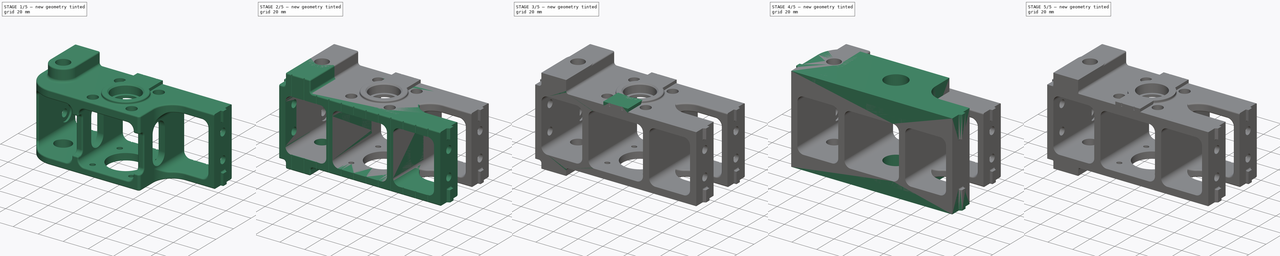
[diagram: build sequence overview — one tinted view per stage of 5, left to right]
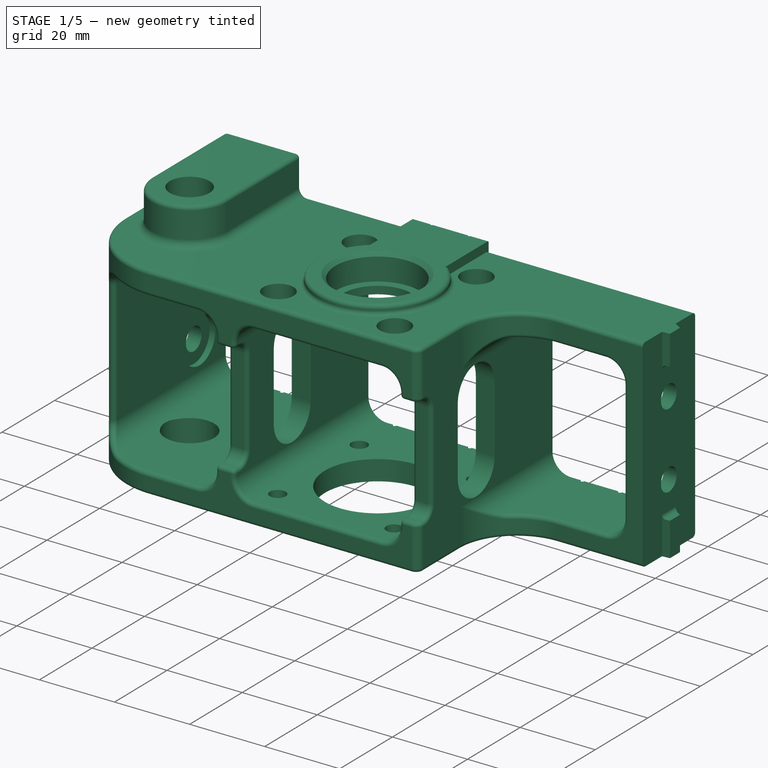
[diagram: stage 1 of 5 — iso view after this stage's code; geometry added in this stage tinted green]
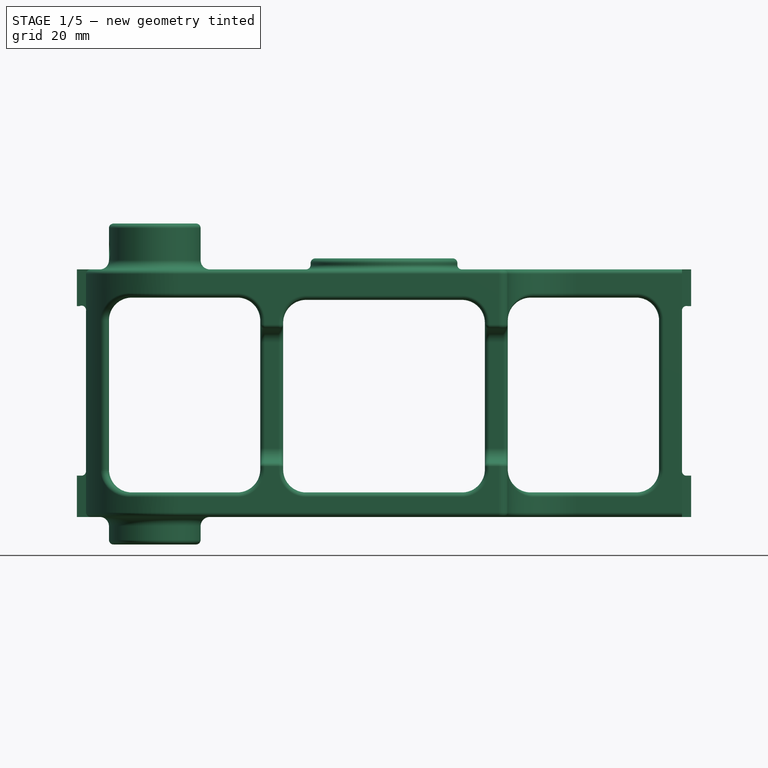
[diagram: stage 1 of 5 — front view after this stage's code; geometry added in this stage tinted green]
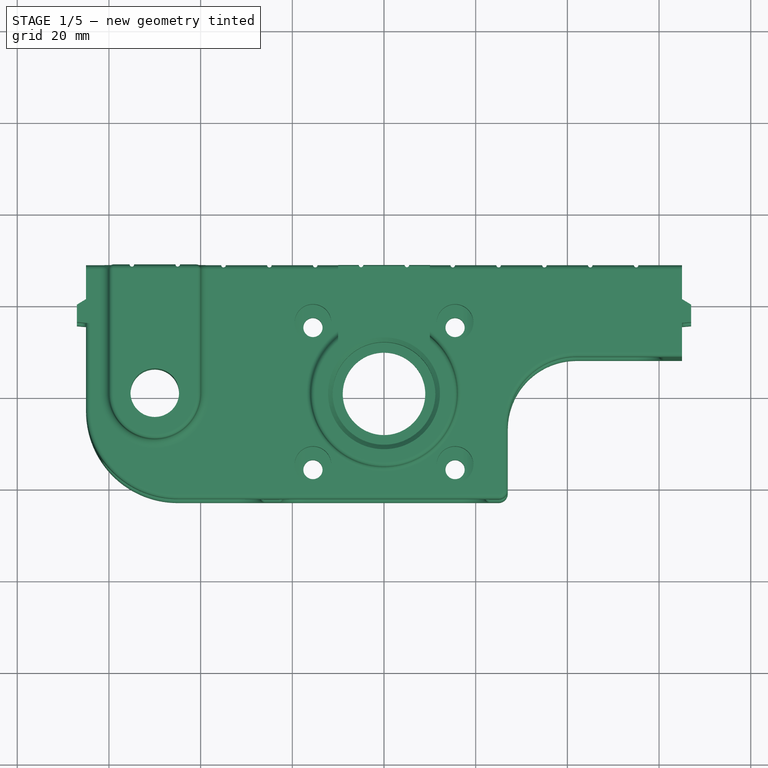
[diagram: stage 1 of 5 — top view after this stage's code; geometry added in this stage tinted green]
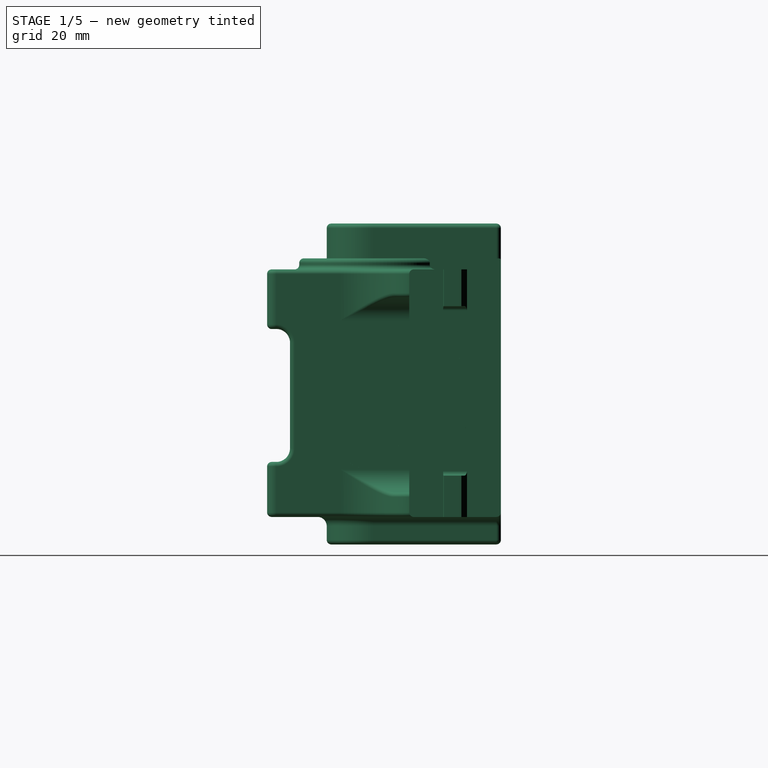
[diagram: stage 1 of 5 — right view after this stage's code; geometry added in this stage tinted green]
FCSTD DOCUMENT  (FreeCAD 0.16R6698 (Git))
Label: z_lower_right_v2.5
License: All rights reserved
LicenseURL: http://en.wikipedia.org/wiki/All_rights_reserved
objects: Sketcher::SketchObject×30, Drawing::FeatureViewPython×30, PartDesign::Pocket×23, PartDesign::Fillet×14, PartDesign::Pad×7, Drawing::FeatureViewPart×6, Drawing::FeaturePage×1, Part::Mirroring×1
note: 105 computed .brp shape members not serialized (recipe doc carries the construction recipe); baked Part::Feature solids carry a one-line shape summary decoded from their .brp

FEATURE [Sketcher::SketchObject] Sketch070
  Placement = pos=(0,0,0) rot=(1,0,0;3.14159rad)
  sketch-geometry (1):
    g0: Circle CenterX=-50 CenterY=0 CenterZ=0 NormalX=0 NormalY=0 NormalZ=1 Radius=6.5
  constraints (1):
    c: Radius(g0) = 6.5
FEATURE [PartDesign::Pocket] Pocket017
  Length = 13
  Sketch = -> Sketch070
  Type = 0
FEATURE [Drawing::FeatureViewPart] Ortho  label="Ortho_0_0"
  Direction = (0,1,0)
  HiddenWidth = 0.15
  LineWidth = 0.35
  Rotation = -90
  Scale = 0.5
  ShowHiddenLines = false
  ShowSmoothLines = false
  Tolerance = 0.05
  ViewResult = <blob: 30758 chars omitted>
  Visible = true
  X = 155
  Y = 150
FEATURE [Drawing::FeatureViewPart] Ortho002  label="Ortho_0_-1"
  Direction = (0,0,-1)
  HiddenWidth = 0.15
  LineWidth = 0.35
  Rotation = 0
  Scale = 0.5
  ShowHiddenLines = false
  ShowSmoothLines = false
  Tolerance = 0.05
  ViewResult = <blob: 14076 chars omitted>
  Visible = true
  X = 155
  Y = 275
FEATURE [Drawing::FeatureViewPart] Ortho004  label="Ortho_1_0"
  Direction = (-1,0,0)
  HiddenWidth = 0.15
  LineWidth = 0.35
  Rotation = 90
  Scale = 0.5
  ShowHiddenLines = false
  ShowSmoothLines = false
  Tolerance = 0.05
  ViewResult = <blob: 18830 chars omitted>
  Visible = true
  X = 320
  Y = 150
FEATURE [Drawing::FeatureViewPart] Ortho005  label="Ortho_-1_0"
  Direction = (1,0,0)
  HiddenWidth = 0.15
  LineWidth = 0.35
  Rotation = -90
  Scale = 0.5
  ShowHiddenLines = false
  ShowSmoothLines = true
  Tolerance = 0.05
  ViewResult = <blob: 28246 chars omitted>
  Visible = true
  X = -10
  Y = 150
FEATURE [Drawing::FeatureViewPart] Ortho006  label="Ortho_2_0"
  Direction = (0,-1,0)
  HiddenWidth = 0.15
  LineWidth = 0.35
  Rotation = 90
  Scale = 0.5
  ShowHiddenLines = false
  ShowSmoothLines = false
  Tolerance = 0.05
  ViewResult = <blob: 19469 chars omitted>
  Visible = true
  X = 280
  Y = 150
FEATURE [Drawing::FeatureViewPart] Ortho001  label="Ortho_0_1"
  Direction = (0,0,1)
  HiddenWidth = 0.15
  LineWidth = 0.35
  Rotation = 180
  Scale = 0.5
  ShowHiddenLines = false
  ShowSmoothLines = false
  Tolerance = 0.05
  ViewResult = <blob: 15304 chars omitted>
  Visible = true
  X = 155
  Y = -10
FEATURE [Drawing::FeatureViewPython] text001  # drawing view (typed FeaturePython)
  Rotation = 0
  ViewResult = <g> <text x="193.842901" y="76.040000" font-family="inherit" font-size="5" fill="rgb(0,0,0)" text-anchor="inherit" transform="rotate(0.000000 193.842901,76.040000)" >'A'</text> </g>
  Visible = true
  X = 0
  Y = 0
  click1_x = 193.843
  click1_y = 76.04
  rotation = 0
  text = 'A'
  textRenderer_addText_color = rgb(0,0,0)
  textRenderer_addText_family = inherit
  textRenderer_addText_size = 5
FEATURE [Drawing::FeatureViewPython] text003  # drawing view (typed FeaturePython)
  Rotation = 0
  ViewResult = <g> <text x="194.827875" y="160.747771" font-family="inherit" font-size="5" fill="rgb(0,0,0)" text-anchor="inherit" transform="rotate(0.000000 194.827875,160.747771)" >'A' Right Lower Z, 'C' Left Lower Z</text> </g>
  Visible = true
  X = 0
  Y = 0
  click1_x = 194.828
  click1_y = 160.748
  rotation = 0
  text = 'A' Right Lower Z, 'C' Left Lower Z
  textRenderer_addText_color = rgb(0,0,0)
  textRenderer_addText_family = inherit
  textRenderer_addText_size = 5
FEATURE [Drawing::FeatureViewPython] text004  # drawing view (typed FeaturePython)
  Rotation = 0
  ViewResult = <g> <text x="195.024870" y="190.296994" font-family="inherit" font-size="5" fill="rgb(0,0,0)" text-anchor="inherit" transform="rotate(0.000000 195.024870,190.296994)" >'B'</text> </g>
  Visible = true
  X = 0
  Y = 0
  click1_x = 195.025
  click1_y = 190.297
  rotation = 0
  text = 'B'
  textRenderer_addText_color = rgb(0,0,0)
  textRenderer_addText_family = inherit
  textRenderer_addText_size = 5
FEATURE [Drawing::FeatureViewPython] text005  # drawing view (typed FeaturePython)
  Rotation = 0
  ViewResult = <g> <text x="97.315440" y="109.726113" font-family="inherit" font-size="5" fill="rgb(0,0,0)" text-anchor="inherit" transform="rotate(0.000000 97.315440,109.726113)" >'B' Inside Surfaces</text> </g>
  Visible = true
  X = 0
  Y = 0
  click1_x = 97.3154
  click1_y = 109.726
  rotation = 0
  text = 'B' Inside Surfaces
  textRenderer_addText_color = rgb(0,0,0)
  textRenderer_addText_family = inherit
  textRenderer_addText_size = 5
FEATURE [Drawing::FeatureViewPython] text006  # drawing view (typed FeaturePython)
  Rotation = 0
  ViewResult = <g> <text x="109.332124" y="154.640932" font-family="inherit" font-size="5" fill="rgb(0,0,0)" text-anchor="inherit" transform="rotate(0.000000 109.332124,154.640932)" >'D'</text> </g>
  Visible = true
  X = 0
  Y = 0
  click1_x = 109.332
  click1_y = 154.641
  rotation = 0
  text = 'D'
  textRenderer_addText_color = rgb(0,0,0)
  textRenderer_addText_family = inherit
  textRenderer_addText_size = 5
FEATURE [Drawing::FeatureViewPython] text007  # drawing view (typed FeaturePython)
  Rotation = 0
  ViewResult = <g> <text x="197.585802" y="109.332124" font-family="inherit" font-size="5" fill="rgb(0,0,0)" text-anchor="inherit" transform="rotate(0.000000 197.585802,109.332124)" >'D'</text> </g>
  Visible = true
  X = 0
  Y = 0
  click1_x = 197.586
  click1_y = 109.332
  rotation = 0
  text = 'D'
  textRenderer_addText_color = rgb(0,0,0)
  textRenderer_addText_family = inherit
  textRenderer_addText_size = 5
FEATURE [Drawing::FeatureViewPython] text009  # drawing view (typed FeaturePython)
  Rotation = 0
  ViewResult = <g> <text x="298.053159" y="108.347150" font-family="inherit" font-size="5" fill="rgb(0,0,0)" text-anchor="inherit" transform="rotate(0.000000 298.053159,108.347150)" >'A'</text> </g>
  Visible = true
  X = 0
  Y = 0
  click1_x = 298.053
  click1_y = 108.347
  rotation = 0
  text = 'A'
  textRenderer_addText_color = rgb(0,0,0)
  textRenderer_addText_family = inherit
  textRenderer_addText_size = 5
FEATURE [Drawing::FeatureViewPython] grabPoint001  # drawing view (typed FeaturePython)
  Rotation = 0
  ViewResult = <g> <line x1="95.7394814207" y1="139.866320594" x2="95.7394814207" y2="139.866320594" style="stroke:rgb(0,0,0);stroke-width:0.01" /> </g> 
  Visible = true
  X = 0
  Y = 0
  click1_x = 95.7395
  click1_y = 139.866
FEATURE [Drawing::FeatureViewPython] grabPoint002  # drawing view (typed FeaturePython)
  Rotation = 0
  ViewResult = <g> <line x1="179.462278959" y1="146.761139215" x2="179.462278959" y2="146.761139215" style="stroke:rgb(0,0,0);stroke-width:0.01" /> </g> 
  Visible = true
  X = 0
  Y = 0
  click1_x = 179.462
  click1_y = 146.761
FEATURE [Drawing::FeatureViewPython] grabPoint003  # drawing view (typed FeaturePython)
  Rotation = 0
  ViewResult = <g> <line x1="169.021553619" y1="176.901346329" x2="169.021553619" y2="176.901346329" style="stroke:rgb(0,0,0);stroke-width:0.01" /> </g> 
  Visible = true
  X = 0
  Y = 0
  click1_x = 169.022
  click1_y = 176.901
FEATURE [Drawing::FeatureViewPython] grabPoint004  # drawing view (typed FeaturePython)
  Rotation = 0
  ViewResult = <g> <line x1="289.582382075" y1="121.545802544" x2="289.582382075" y2="121.545802544" style="stroke:rgb(0,0,0);stroke-width:0.01" /> </g> 
  Visible = true
  X = 0
  Y = 0
  click1_x = 289.582
  click1_y = 121.546
FEATURE [Drawing::FeatureViewPython] grabPoint005  # drawing view (typed FeaturePython)
  Rotation = 0
  ViewResult = <g> <line x1="171.188496614" y1="83.7227975387" x2="171.188496614" y2="83.7227975387" style="stroke:rgb(0,0,0);stroke-width:0.01" /> </g> 
  Visible = true
  X = 0
  Y = 0
  click1_x = 171.188
  click1_y = 83.7228
FEATURE [Drawing::FeatureViewPython] grabPoint006  # drawing view (typed FeaturePython)
  Rotation = 0
  ViewResult = <g> <line x1="181.038237501" y1="96.9214503272" x2="181.038237501" y2="96.9214503272" style="stroke:rgb(0,0,0);stroke-width:0.01" /> </g> 
  Visible = true
  X = 0
  Y = 0
  click1_x = 181.038
  click1_y = 96.9215
FEATURE [Drawing::FeatureViewPython] grabPoint007  # drawing view (typed FeaturePython)
  Rotation = 0
  ViewResult = <g> <line x1="180.25025823" y1="118.393885461" x2="180.25025823" y2="118.393885461" style="stroke:rgb(0,0,0);stroke-width:0.01" /> </g> 
  Visible = true
  X = 0
  Y = 0
  click1_x = 180.25
  click1_y = 118.394
FEATURE [Drawing::FeatureViewPython] weld001  # drawing view (typed FeaturePython)
  Rotation = 0
  ViewResult = <g   >\n<line x1="187.948207" y1="77.427168" x2="171.188497" y2="83.722798" style="stroke:rgb(0,0,255);stroke-width:0.50" />\n<polygon points="171.188497,83.722798 174.348541,83.603982 174.933024,82.316201 173.645243,81.731718" style="fill:rgb(0,0,255);stroke:rgb(0,0,255);stroke-width:0" />\n<line x1="187.948207" y1="77.427168" x2="203.308758" y2="77.427168" style="stroke:rgb(0,0,255);stroke-width:0.50" />\n</g> 
  Visible = true
  X = 0
  Y = 0
  arrowL1 = 3
  arrowL2 = 1
  arrowW = 2
  click1_x = 187.948
  click1_y = 77.4272
  click2_x = 203.309
  click2_y = 78.3013
  lineColor = rgb(0,0,255)
  strokeWidth = 0.5
  textRenderer_color = rgb(0,0,255)
  textRenderer_family = inherit
  textRenderer_size = 3.6
FEATURE [Drawing::FeatureViewPython] weld002  # drawing view (typed FeaturePython)
  Rotation = 0
  ViewResult = <g   >\n<line x1="188.073089" y1="77.427168" x2="181.038238" y2="96.921450" style="stroke:rgb(0,0,255);stroke-width:0.50" />\n<polygon points="181.038238,96.921450 182.997190,94.439011 182.396004,93.158942 181.115935,93.760127" style="fill:rgb(0,0,255);stroke:rgb(0,0,255);stroke-width:0" />\n<line x1="188.073089" y1="77.427168" x2="188.330694" y2="77.427168" style="stroke:rgb(0,0,255);stroke-width:0.50" />\n</g> 
  Visible = true
  X = 0
  Y = 0
  arrowL1 = 3
  arrowL2 = 1
  arrowW = 2
  click1_x = 188.073
  click1_y = 77.4272
  click2_x = 188.331
  click2_y = 77.6351
  lineColor = rgb(0,0,255)
  strokeWidth = 0.5
  textRenderer_color = rgb(0,0,255)
  textRenderer_family = inherit
  textRenderer_size = 3.6
FEATURE [Drawing::FeatureViewPython] weld003  # drawing view (typed FeaturePython)
  Rotation = 0
  ViewResult = <g   >\n<line x1="187.912688" y1="77.331106" x2="160.000000" y2="99.695000" style="stroke:rgb(0,0,255);stroke-width:0.50" />\n<polygon points="160.000000,99.695000 162.966495,98.599598 163.121634,97.193919 161.715955,97.038781" style="fill:rgb(0,0,255);stroke:rgb(0,0,255);stroke-width:0" />\n<line x1="187.912688" y1="77.331106" x2="187.993964" y2="77.331106" style="stroke:rgb(0,0,255);stroke-width:0.50" />\n</g> 
  Visible = true
  X = 0
  Y = 0
  arrowL1 = 3
  arrowL2 = 1
  arrowW = 2
  click1_x = 187.913
  click1_y = 77.3311
  click2_x = 187.994
  click2_y = 76.9193
  lineColor = rgb(0,0,255)
  strokeWidth = 0.5
  textRenderer_color = rgb(0,0,255)
  textRenderer_family = inherit
  textRenderer_size = 3.6
FEATURE [Drawing::FeatureViewPython] weld004  # drawing view (typed FeaturePython)
  Rotation = 0
  ViewResult = <g   >\n<line x1="195.398795" y1="162.110319" x2="179.462279" y2="146.761139" style="stroke:rgb(0,0,255);stroke-width:0.50" />\n<polygon points="179.462279,146.761139 180.929333,149.562523 182.343297,149.535978 182.316753,148.122014" style="fill:rgb(0,0,255);stroke:rgb(0,0,255);stroke-width:0" />\n<line x1="195.398795" y1="162.110319" x2="280.786016" y2="162.110319" style="stroke:rgb(0,0,255);stroke-width:0.50" />\n</g> 
  Visible = true
  X = 0
  Y = 0
  arrowL1 = 3
  arrowL2 = 1
  arrowW = 2
  click1_x = 195.399
  click1_y = 162.11
  click2_x = 280.786
  click2_y = 161.996
  lineColor = rgb(0,0,255)
  strokeWidth = 0.5
  textRenderer_color = rgb(0,0,255)
  textRenderer_family = inherit
  textRenderer_size = 3.6
FEATURE [Drawing::FeatureViewPython] weld005  # drawing view (typed FeaturePython)
  Rotation = 0
  ViewResult = <g   >\n<line x1="109.012041" y1="156.016438" x2="95.739481" y2="139.866321" style="stroke:rgb(0,0,255);stroke-width:0.50" />\n<polygon points="95.739481,139.866321 96.871671,142.818971 98.279169,142.956626 98.416824,141.549127" style="fill:rgb(0,0,255);stroke:rgb(0,0,255);stroke-width:0" />\n<line x1="109.012041" y1="156.016438" x2="118.031335" y2="156.016438" style="stroke:rgb(0,0,255);stroke-width:0.50" />\n</g> 
  Visible = true
  X = 0
  Y = 0
  arrowL1 = 3
  arrowL2 = 1
  arrowW = 2
  click1_x = 109.012
  click1_y = 156.016
  click2_x = 118.031
  click2_y = 155.67
  lineColor = rgb(0,0,255)
  strokeWidth = 0.5
  textRenderer_color = rgb(0,0,255)
  textRenderer_family = inherit
  textRenderer_size = 3.6
FEATURE [Drawing::FeatureViewPython] grabPoint008  # drawing view (typed FeaturePython)
  Rotation = 0
  ViewResult = <g> <line x1="83.0162337286" y1="122.875021446" x2="83.0162337286" y2="122.875021446" style="stroke:rgb(0,0,0);stroke-width:0.01" /> </g> 
  Visible = true
  X = 0
  Y = 0
  click1_x = 83.0162
  click1_y = 122.875
FEATURE [Drawing::FeatureViewPython] weld006  # drawing view (typed FeaturePython)
  Rotation = 0
  ViewResult = <g   >\n<line x1="96.320822" y1="110.834919" x2="83.016234" y2="122.875021" style="stroke:rgb(0,0,255);stroke-width:0.50" />\n<polygon points="83.016234,122.875021 85.911617,121.603504 85.982086,120.191047 84.569630,120.120578" style="fill:rgb(0,0,255);stroke:rgb(0,0,255);stroke-width:0" />\n<line x1="96.320822" y1="110.834919" x2="144.756121" y2="110.834919" style="stroke:rgb(0,0,255);stroke-width:0.50" />\n</g> 
  Visible = true
  X = 0
  Y = 0
  arrowL1 = 3
  arrowL2 = 1
  arrowW = 2
  click1_x = 96.3208
  click1_y = 110.835
  click2_x = 144.756
  click2_y = 110.89
  lineColor = rgb(0,0,255)
  strokeWidth = 0.5
  textRenderer_color = rgb(0,0,255)
  textRenderer_family = inherit
  textRenderer_size = 3.6
FEATURE [Drawing::FeatureViewPython] weld007  # drawing view (typed FeaturePython)
  Rotation = 0
  ViewResult = <g   >\n<line x1="192.839439" y1="191.694683" x2="169.021554" y2="176.901346" style="stroke:rgb(0,0,255);stroke-width:0.50" />\n<polygon points="169.021554,176.901346 171.042387,179.333677 172.419486,179.011809 172.097619,177.634710" style="fill:rgb(0,0,255);stroke:rgb(0,0,255);stroke-width:0" />\n<line x1="192.839439" y1="191.694683" x2="204.495142" y2="191.694683" style="stroke:rgb(0,0,255);stroke-width:0.50" />\n</g> 
  Visible = true
  X = 0
  Y = 0
  arrowL1 = 3
  arrowL2 = 1
  arrowW = 2
  click1_x = 192.839
  click1_y = 191.695
  click2_x = 204.495
  click2_y = 192.631
  lineColor = rgb(0,0,255)
  strokeWidth = 0.5
  textRenderer_color = rgb(0,0,255)
  textRenderer_family = inherit
  textRenderer_size = 3.6
FEATURE [Drawing::FeatureViewPython] weld008  # drawing view (typed FeaturePython)
  Rotation = 0
  ViewResult = <g   >\n<line x1="296.451467" y1="109.489023" x2="289.582382" y2="121.545803" style="stroke:rgb(0,0,255);stroke-width:0.50" />\n<polygon points="289.582382,121.545803 291.936335,119.434190 291.562481,118.070287 290.198577,118.444141" style="fill:rgb(0,0,255);stroke:rgb(0,0,255);stroke-width:0" />\n<line x1="296.451467" y1="109.489023" x2="305.991105" y2="109.489023" style="stroke:rgb(0,0,255);stroke-width:0.50" />\n</g> 
  Visible = true
  X = 0
  Y = 0
  arrowL1 = 3
  arrowL2 = 1
  arrowW = 2
  click1_x = 296.451
  click1_y = 109.489
  click2_x = 305.991
  click2_y = 109.778
  lineColor = rgb(0,0,255)
  strokeWidth = 0.5
  textRenderer_color = rgb(0,0,255)
  textRenderer_family = inherit
  textRenderer_size = 3.6
FEATURE [Drawing::FeatureViewPython] grabPoint009  # drawing view (typed FeaturePython)
  Rotation = 0
  ViewResult = <g> <line x1="210.99944027" y1="132.254067576" x2="210.99944027" y2="132.254067576" style="stroke:rgb(0,0,0);stroke-width:0.01" /> </g> 
  Visible = true
  X = 0
  Y = 0
  click1_x = 210.999
  click1_y = 132.254
FEATURE [Drawing::FeatureViewPython] grabPoint010  # drawing view (typed FeaturePython)
  Rotation = 0
  ViewResult = <g> <line x1="224.962000847" y1="123.841841638" x2="224.962000847" y2="123.841841638" style="stroke:rgb(0,0,0);stroke-width:0.01" /> </g> 
  Visible = true
  X = 0
  Y = 0
  click1_x = 224.962
  click1_y = 123.842
FEATURE [Drawing::FeatureViewPython] grabPoint011  # drawing view (typed FeaturePython)
  Rotation = 0
  ViewResult = <g> <line x1="213.167539738" y1="117.250819254" x2="213.167539738" y2="117.250819254" style="stroke:rgb(0,0,0);stroke-width:0.01" /> </g> 
  Visible = true
  X = 0
  Y = 0
  click1_x = 213.168
  click1_y = 117.251
FEATURE [Drawing::FeatureViewPython] weld009  # drawing view (typed FeaturePython)
  Rotation = 0
  ViewResult = <g   >\n<line x1="205.275658" y1="111.180141" x2="210.999440" y2="132.254068" style="stroke:rgb(0,0,255);stroke-width:0.50" />\n<polygon points="210.999440,132.254068 211.178151,129.096844 209.951004,128.393915 209.248075,129.621062" style="fill:rgb(0,0,255);stroke:rgb(0,0,255);stroke-width:0" />\n<line x1="205.275658" y1="111.180141" x2="195.909468" y2="111.180141" style="stroke:rgb(0,0,255);stroke-width:0.50" />\n</g> 
  Visible = true
  X = 0
  Y = 0
  arrowL1 = 3
  arrowL2 = 1
  arrowW = 2
  click1_x = 205.276
  click1_y = 111.18
  click2_x = 195.909
  click2_y = 112.134
  lineColor = rgb(0,0,255)
  strokeWidth = 0.5
  textRenderer_color = rgb(0,0,255)
  textRenderer_family = inherit
  textRenderer_size = 3.6
FEATURE [Drawing::FeatureViewPython] weld010  # drawing view (typed FeaturePython)
  Rotation = 0
  ViewResult = <g   >\n<line x1="222.290902" y1="108.398036" x2="213.167540" y2="117.250819" style="stroke:rgb(0,0,255);stroke-width:0.50" />\n<polygon points="213.167540,117.250819 216.016931,115.879335 216.038215,114.465281 214.624162,114.443997" style="fill:rgb(0,0,255);stroke:rgb(0,0,255);stroke-width:0" />\n<line x1="222.290902" y1="108.398036" x2="238.525631" y2="108.398036" style="stroke:rgb(0,0,255);stroke-width:0.50" />\n</g> 
  Visible = true
  X = 0
  Y = 0
  arrowL1 = 3
  arrowL2 = 1
  arrowW = 2
  click1_x = 222.291
  click1_y = 108.398
  click2_x = 238.526
  click2_y = 108.148
  lineColor = rgb(0,0,255)
  strokeWidth = 0.5
  textRenderer_color = rgb(0,0,255)
  textRenderer_family = inherit
  textRenderer_size = 3.6
FEATURE [Drawing::FeatureViewPython] weld011  # drawing view (typed FeaturePython)
  Rotation = 0
  ViewResult = <g   >\n<line x1="222.540667" y1="108.023388" x2="224.962001" y2="123.841842" style="stroke:rgb(0,0,255);stroke-width:0.50" />\n<polygon points="224.962001,123.841842 225.496564,120.725074 224.356770,119.887895 223.519591,121.027689" style="fill:rgb(0,0,255);stroke:rgb(0,0,255);stroke-width:0" />\n<line x1="222.540667" y1="108.023388" x2="222.415785" y2="108.023388" style="stroke:rgb(0,0,255);stroke-width:0.50" />\n</g> 
  Visible = true
  X = 0
  Y = 0
  arrowL1 = 3
  arrowL2 = 1
  arrowW = 2
  click1_x = 222.541
  click1_y = 108.023
  click2_x = 222.416
  click2_y = 108.398
  lineColor = rgb(0,0,255)
  strokeWidth = 0.5
  textRenderer_color = rgb(0,0,255)
  textRenderer_family = inherit
  textRenderer_size = 3.6
FEATURE [Drawing::FeatureViewPython] text002  # drawing view (typed FeaturePython)
  Rotation = 0
  ViewResult = <g> <text x="227.411086" y="106.275033" font-family="inherit" font-size="5" fill="rgb(0,0,0)" text-anchor="inherit" transform="rotate(0.000000 227.411086,106.275033)" >'B'</text> </g>
  Visible = true
  X = 0
  Y = 0
  click1_x = 227.411
  click1_y = 106.275
  rotation = 0
  text = 'B'
  textRenderer_addText_color = rgb(0,0,0)
  textRenderer_addText_family = inherit
  textRenderer_addText_size = 5
FEATURE [Drawing::FeaturePage] Page
  EditableTexts = AUTHOR NAME | CREATION DATE | SUPERVISOR NAME | CHECK DATE | SCALE | WEIGHT | NUMBER | SHEET | TITLE | SUBTITLE
  Group = -> [Ortho,Ortho001,Ortho002,Ortho004,Ortho005,Ortho006,text001,text003,text004,text005,text006,text007,text009,grabPoint001,grabPoint002,grabPoint003,grabPoint004,grabPoint005,grabPoint006,grabPoint007,weld001,weld002,weld003,weld004,weld005,grabPoint008,weld006,weld007,weld008,grabPoint009,grabPoint010,grabPoint011,weld009,weld010,weld011,text002]
FEATURE [Sketcher::SketchObject] Sketch071
  ExternalGeometry = -> [Pocket017]
  Placement = pos=(-60,0,0) rot=(0.57735,-0.57735,-0.57735;2.0944rad)
  Support = -> Pocket017 [Face78]
  sketch-geometry (1):
    g0: Circle CenterX=0 CenterY=65 CenterZ=0 NormalX=0 NormalY=0 NormalZ=1 Radius=2.5
  constraints (2):
    c: Coincident(g0,g-3)
    c: Radius(g0) = 2.5
FEATURE [PartDesign::Pad] Pad002
  Length = 8
  Length2 = 100
  Reversed = true
  Sketch = -> Sketch071
  Type = 0
FEATURE [Sketcher::SketchObject] Sketch072
  ExternalGeometry = -> [Pad002]
  Placement = pos=(0,0,70) rot=(0,0,1;0rad)
  Support = -> Pad002 [Face167]
  sketch-geometry (4):
    g0: Circle CenterX=-50 CenterY=0 CenterZ=0 NormalX=0 NormalY=0 NormalZ=1 Radius=5.3
    g1: ArcOfCircle CenterX=-50 CenterY=0 CenterZ=0 NormalX=0 NormalY=0 NormalZ=1 Radius=10 StartAngle=2.8682 EndAngle=3.14159
    g2: LineSegment StartX=-60 StartY=2.7 StartZ=0 EndX=-60 EndY=0 EndZ=0
    g3: LineSegment StartX=-60 StartY=2.7 StartZ=0 EndX=-59.6286 EndY=2.7 EndZ=0
  constraints (10):
    c: Coincident(g0,g-4)
    c: Coincident(g1,g0)
    c: Vertical(g2)
    c: Horizontal(g3)
    c: Equal(g0,g-3)
    c: PointOnObject(g-4,g1)
    c: Coincident(g2,g3)
    c: DistanceY(g0,g2) = 2.7
    c: Coincident(g1,g3)
    c: Coincident(g1,g2)
FEATURE [PartDesign::Pocket] Pocket018
  Length = 8
  Sketch = -> Sketch072
  Type = 0
FEATURE [Sketcher::SketchObject] Sketch073
  ExternalGeometry = -> [Pocket018]
  Placement = pos=(-60,0,0) rot=(0.57735,-0.57735,-0.57735;2.0944rad)
  Support = -> Pocket018 [Face90]
  sketch-geometry (2):
    g0: LineSegment [constr] StartX=0 StartY=75.8704 StartZ=0 EndX=0 EndY=60.9078 EndZ=0
    g1: Circle CenterX=0 CenterY=64.1 CenterZ=0 NormalX=0 NormalY=0 NormalZ=1 Radius=2.2
  constraints (5):
    c: Vertical(g0)
    c: PointOnObject(g-3,g0)
    c: PointOnObject(g1,g0)
    c: DistanceY(g1,g-3) = 0.9
    c: Equal(g-3,g1)
FEATURE [PartDesign::Pocket] Pocket019
  Length = 8
  Sketch = -> Sketch073
  Type = 0
FEATURE [Part::Mirroring] Part__Mirroring  label="Pocket019 (Mirror #1)"
  Base = (0,0,0)
  Normal = (0,1,0)
  Source = -> Pocket019
FEATURE [Sketcher::SketchObject] Sketch074
  ExternalGeometry = -> [Part__Mirroring]
  Placement = pos=(-62.5,0,0) rot=(0.57735,0.57735,0.57735;2.0944rad)
  Support = -> Part__Mirroring [Face281]
  sketch-geometry (4):
    g0: Circle CenterX=18 CenterY=43.5 CenterZ=0 NormalX=0 NormalY=0 NormalZ=1 Radius=6
    g1: Circle CenterX=18 CenterY=23.5 CenterZ=0 NormalX=0 NormalY=0 NormalZ=1 Radius=6
    g2: Circle CenterX=18 CenterY=43.5 CenterZ=0 NormalX=0 NormalY=0 NormalZ=1 Radius=3
    g3: Circle CenterX=17.9939 CenterY=23.4987 CenterZ=0 NormalX=0 NormalY=0 NormalZ=1 Radius=3
  constraints (7):
    c: Coincident(g0,g-4)
    c: Coincident(g1,g-5)
    c: Equal(g1,g-5)
    c: Equal(g0,g-4)
    c: Coincident(g2,g0)
    c: Equal(g-3,g2)
    c: Equal(g2,g3)
FEATURE [PartDesign::Pad] Pad003
  Length = 1
  Length2 = 100
  Sketch = -> Sketch074
  Type = 0
FEATURE [Sketcher::SketchObject] Sketch075
  ExternalGeometry = -> [Pad003]
  Placement = pos=(-61.5,0,0) rot=(0.57735,0.57735,0.57735;2.0944rad)
  Support = -> Pad003 [Face283]
  sketch-geometry (1):
    g0: Circle CenterX=18 CenterY=43.5 CenterZ=0 NormalX=0 NormalY=0 NormalZ=1 Radius=6
  constraints (2):
    c: Coincident(g0,g-3)
    c: Equal(g0,g-3)
FEATURE [PartDesign::Pocket] Pocket020
  Length = 5
  Reversed = true
  Sketch = -> Sketch075
  Type = 0
FEATURE [Sketcher::SketchObject] Sketch076
  ExternalGeometry = -> [Pocket020]
  Placement = pos=(62.5,0,0) rot=(0.57735,-0.57735,-0.57735;2.0944rad)
  Support = -> Pocket020 [Face272]
  sketch-geometry (4):
    g0: Circle CenterX=-18 CenterY=43.5 CenterZ=0 NormalX=0 NormalY=0 NormalZ=1 Radius=6
    g1: Circle CenterX=-18 CenterY=23.5 CenterZ=0 NormalX=0 NormalY=0 NormalZ=1 Radius=3
    g2: Circle CenterX=-18 CenterY=23.5 CenterZ=0 NormalX=0 NormalY=0 NormalZ=1 Radius=6
    g3: Circle CenterX=-18 CenterY=43.5 CenterZ=0 NormalX=0 NormalY=0 NormalZ=1 Radius=3
  constraints (8):
    c: Coincident(g0,g-3)
    c: Coincident(g1,g-4)
    c: Coincident(g2,g1)
    c: Coincident(g3,g0)
    c: Equal(g2,g-4)
    c: Equal(g0,g-3)
    c: Equal(g3,g-5)
    c: Equal(g-5,g1)
FEATURE [PartDesign::Pad] Pad004
  Length = 1
  Length2 = 100
  Sketch = -> Sketch076
  Type = 0
FEATURE [Sketcher::SketchObject] Sketch077
  ExternalGeometry = -> [Pad004]
  Placement = pos=(61.5,0,0) rot=(0.57735,-0.57735,-0.57735;2.0944rad)
  Support = -> Pad004 [Face271]
  sketch-geometry (1):
    g0: Circle CenterX=-18 CenterY=43.5 CenterZ=0 NormalX=0 NormalY=0 NormalZ=1 Radius=6
  constraints (2):
    c: Coincident(g0,g-3)
    c: Equal(g0,g-3)
FEATURE [PartDesign::Pocket] Pocket021
  Length = 5
  Reversed = true
  Sketch = -> Sketch077
  Type = 0
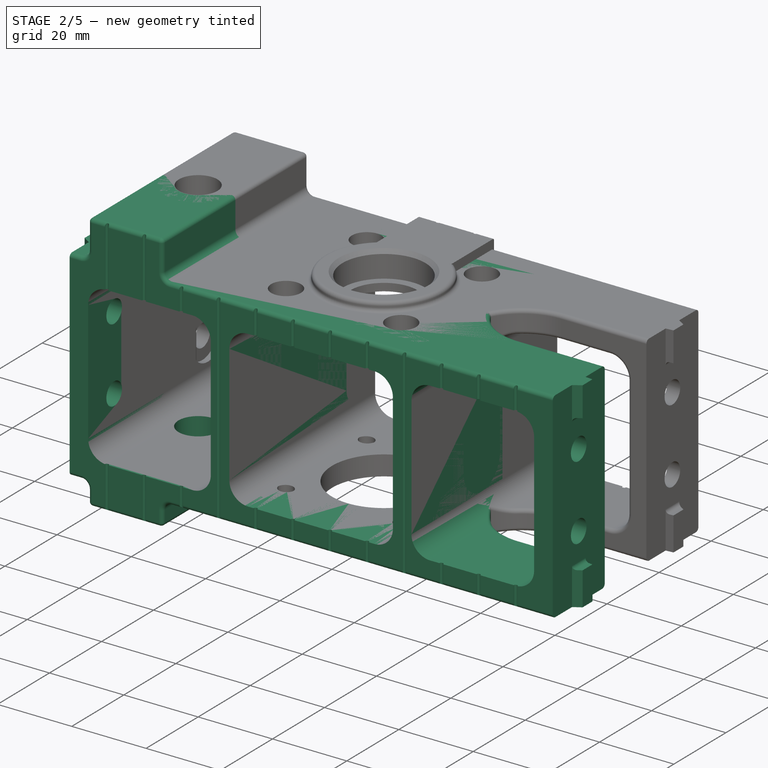
[diagram: stage 2 of 5 — iso view after this stage's code; geometry added in this stage tinted green]
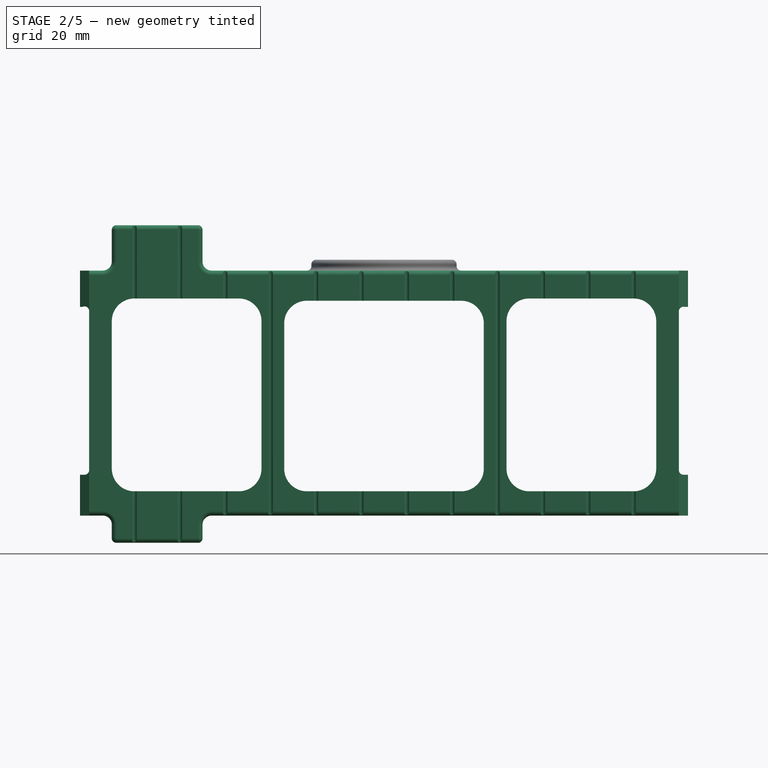
[diagram: stage 2 of 5 — front view after this stage's code; geometry added in this stage tinted green]
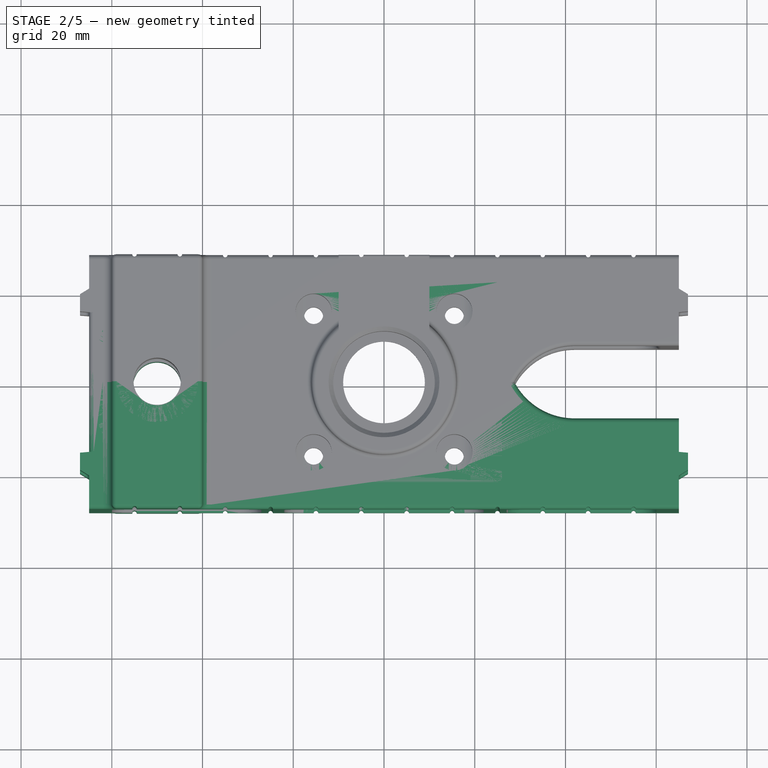
[diagram: stage 2 of 5 — top view after this stage's code; geometry added in this stage tinted green]
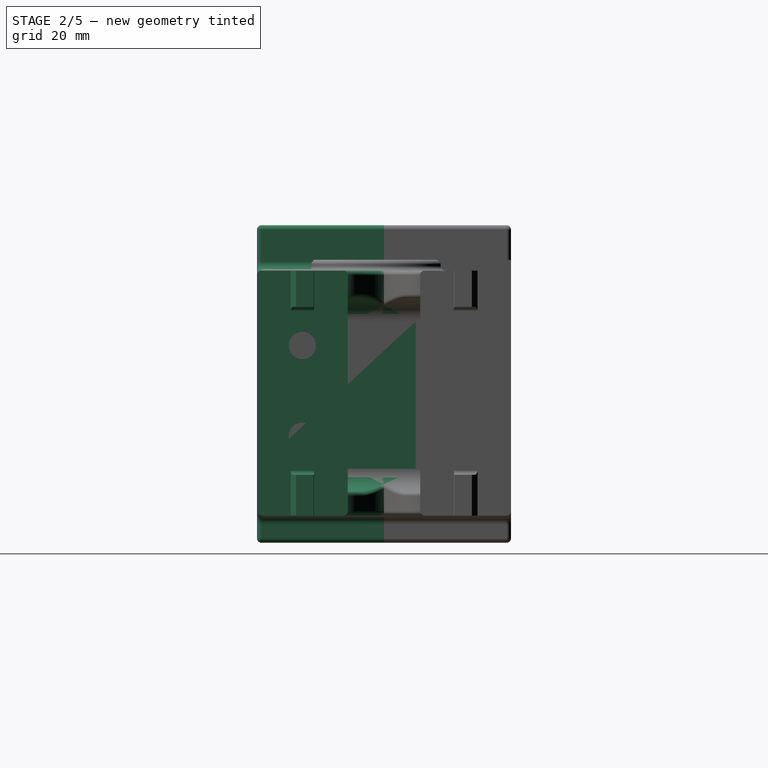
[diagram: stage 2 of 5 — right view after this stage's code; geometry added in this stage tinted green]
FEATURE [PartDesign::Fillet] Fillet009
  Radius = 1
FEATURE [PartDesign::Fillet] Fillet010
  Base = -> Fillet009 [Edge52]
  Radius = 1
FEATURE [PartDesign::Fillet] Fillet011
  Base = -> Fillet010 [Edge111]
  Radius = 1
FEATURE [PartDesign::Fillet] Fillet012
  Base = -> Fillet011 [Edge365]
  Radius = 1
FEATURE [PartDesign::Fillet] Fillet013
  Base = -> Fillet012 [Edge195,Edge517,Edge301]
  Radius = 1
FEATURE [PartDesign::Fillet] Fillet014
  Base = -> Fillet013 [Edge46]
  Radius = 1
FEATURE [Sketcher::SketchObject] Sketch078
  ExternalGeometry = -> [Pocket021]
  Placement = pos=(0,0,70) rot=(0,0,1;0rad)
  Support = -> Pocket021 [Face170]
  sketch-geometry (2):
    g0: Circle CenterX=-50 CenterY=0 CenterZ=0 NormalX=0 NormalY=0 NormalZ=1 Radius=5.2
    g1: Circle CenterX=-50 CenterY=0 CenterZ=0 NormalX=0 NormalY=0 NormalZ=1 Radius=6
  constraints (4):
    c: Coincident(g0,g-3)
    c: Coincident(g1,g0)
    c: Radius(g1) = 6
    c: Radius(g0) = 5.2
FEATURE [PartDesign::Pad] Pad005
  Length = 16
  Length2 = 100
  Reversed = true
  Sketch = -> Sketch078
  Type = 0
FEATURE [Sketcher::SketchObject] Sketch079
  ExternalGeometry = -> [Pad005]
  Placement = pos=(0,0,0) rot=(1,0,0;3.14159rad)
  Support = -> Pad005 [Face249]
  sketch-geometry (2):
    g0: Circle CenterX=-50 CenterY=0 CenterZ=0 NormalX=0 NormalY=0 NormalZ=1 Radius=5.3
    g1: Circle CenterX=-50 CenterY=0 CenterZ=0 NormalX=0 NormalY=0 NormalZ=1 Radius=7
  constraints (4):
    c: Coincident(g0,g-3)
    c: Coincident(g1,g0)
    c: Radius(g1) = 7
    c: Radius(g0) = 5.3
FEATURE [PartDesign::Pad] Pad006
  Length = 11.25
  Length2 = 100
  Reversed = true
  Sketch = -> Sketch079
  Type = 0
  UpToFace = -> Pad005 [Face74]
FEATURE [Sketcher::SketchObject] Sketch080
  ExternalGeometry = -> [Pad006]
  Placement = pos=(-60,0,0) rot=(0.57735,-0.57735,-0.57735;2.0944rad)
  Support = -> Pad006 [Face92]
  sketch-geometry (1):
    g0: Circle CenterX=0 CenterY=64.1 CenterZ=0 NormalX=0 NormalY=0 NormalZ=1 Radius=2.2
  constraints (2):
    c: Coincident(g0,g-3)
    c: PointOnObject(g-3,g0)
FEATURE [PartDesign::Pocket] Pocket022
  Length = 8
  Sketch = -> Sketch080
  Type = 0
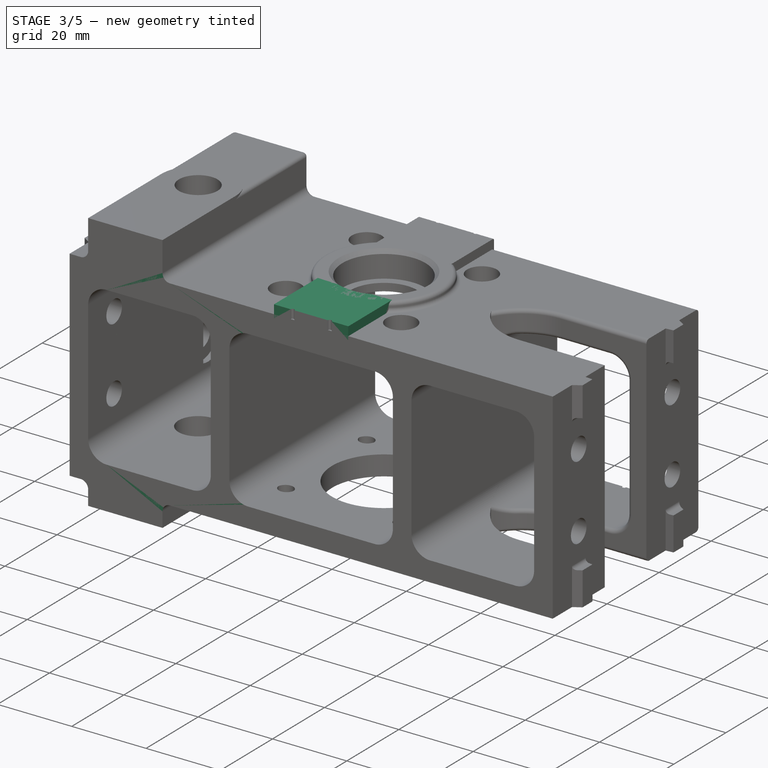
[diagram: stage 3 of 5 — iso view after this stage's code; geometry added in this stage tinted green]
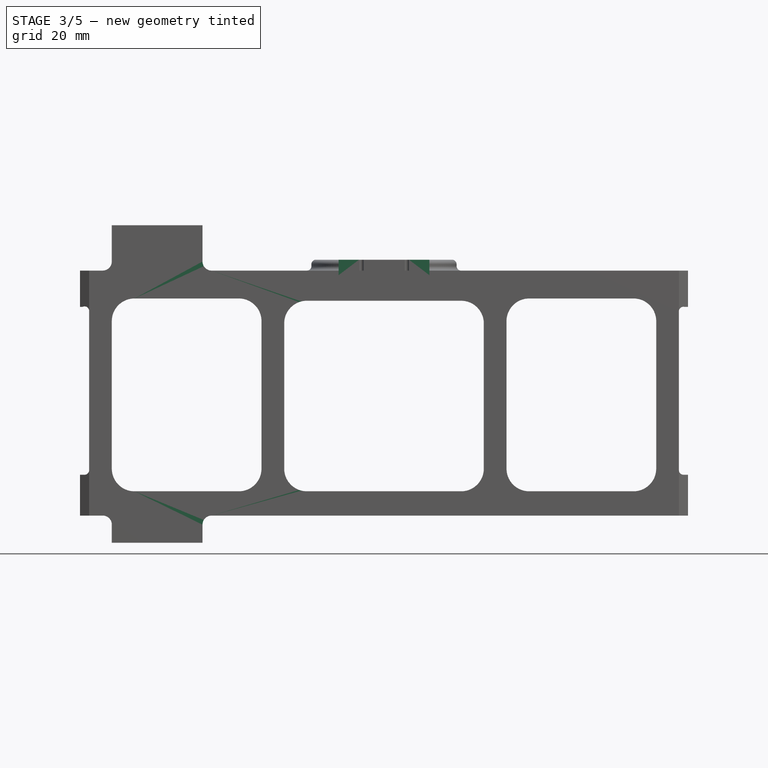
[diagram: stage 3 of 5 — front view after this stage's code; geometry added in this stage tinted green]
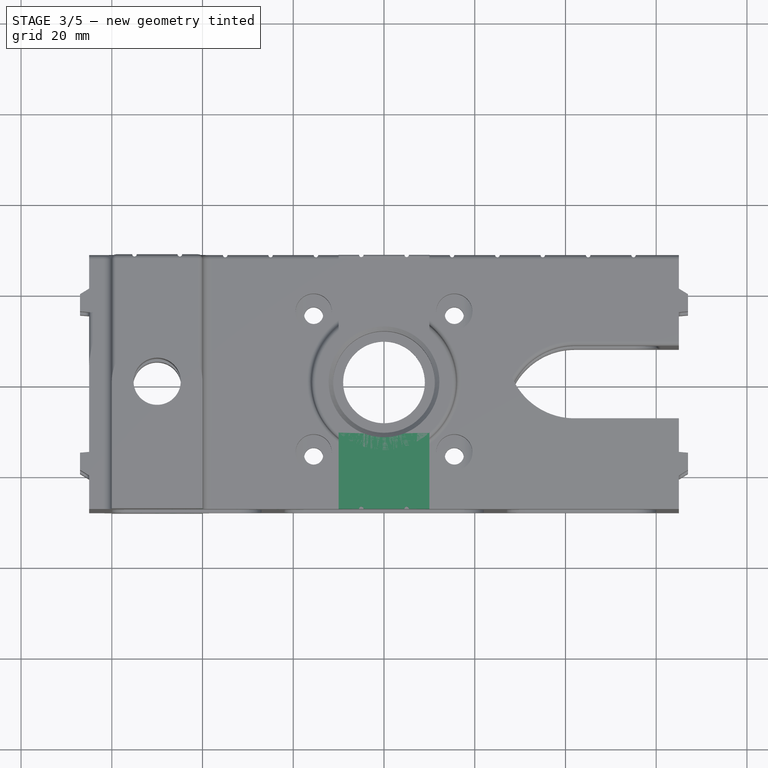
[diagram: stage 3 of 5 — top view after this stage's code; geometry added in this stage tinted green]
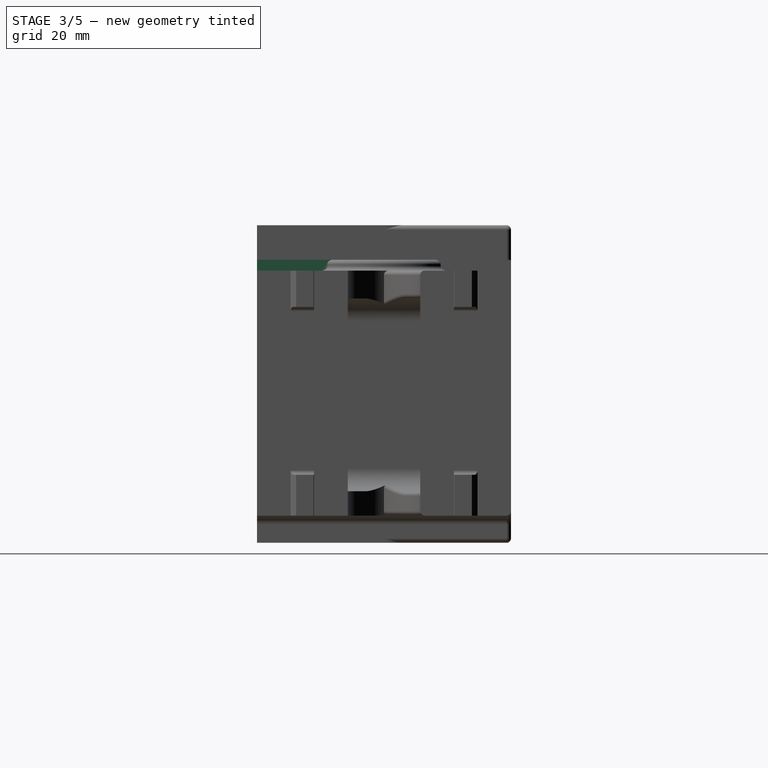
[diagram: stage 3 of 5 — right view after this stage's code; geometry added in this stage tinted green]
FEATURE [PartDesign::Fillet] Fillet
  Radius = 1
FEATURE [PartDesign::Fillet] Fillet001
  Base = -> Fillet [Edge15]
  Radius = 1
FEATURE [PartDesign::Fillet] Fillet002
  Base = -> Fillet001 [Edge185]
  Radius = 1
FEATURE [Sketcher::SketchObject] Sketch066
  Placement = pos=(27,0,0) rot=(0.57735,0.57735,0.57735;2.0944rad)
  Support = -> Fillet014 [Face109]
  sketch-geometry (4):
    g0: ArcOfCircle CenterX=1 CenterY=41.5 CenterZ=0 NormalX=0 NormalY=0 NormalZ=1 Radius=7 StartAngle=0 EndAngle=3.14159
    g1: ArcOfCircle CenterX=1 CenterY=23.5 CenterZ=0 NormalX=0 NormalY=0 NormalZ=1 Radius=7 StartAngle=3.14159 EndAngle=6.28319
    g2: LineSegment StartX=-6 StartY=41.5 StartZ=0 EndX=-6 EndY=23.5 EndZ=0
    g3: LineSegment StartX=8 StartY=41.5 StartZ=0 EndX=8 EndY=23.5 EndZ=0
  constraints (10):
    c: Tangent(g0,g3) = 1.5708
    c: Tangent(g0,g2) = -1.5708
    c: Tangent(g2,g1) = -1.5708
    c: Tangent(g3,g1) = 1.5708
    c: Vertical(g2)
    c: Equal(g0,g1)
    c: DistanceY(g-1,g1) = 23.5
    c: DistanceY(g3) = -18
    c: Radius(g1) = 7
    c: DistanceX(g-1,g1) = 1
FEATURE [PartDesign::Pocket] Pocket012
  Length = 70
  Sketch = -> Sketch066
  Type = 0
FEATURE [Sketcher::SketchObject] Sketch064
  Placement = pos=(60,0,0) rot=(0.57735,-0.57735,-0.57735;2.0944rad)
  Support = -> Pocket012 [Face233]
  sketch-geometry (2):
    g0: Circle CenterX=18 CenterY=43.5 CenterZ=0 NormalX=0 NormalY=0 NormalZ=1 Radius=6
    g1: Circle CenterX=18 CenterY=23.5 CenterZ=0 NormalX=0 NormalY=0 NormalZ=1 Radius=6
  constraints (2):
    c: Equal(g0,g1)
    c: Radius(g1) = 6
FEATURE [PartDesign::Pocket] Pocket013
  Length = 2.5
  Sketch = -> Sketch064
  Type = 0
FEATURE [Sketcher::SketchObject] Sketch065
  Placement = pos=(-60,0,0) rot=(0.57735,0.57735,0.57735;2.0944rad)
  Support = -> Pocket013 [Face59]
  sketch-geometry (2):
    g0: Circle CenterX=-18 CenterY=43.5 CenterZ=0 NormalX=0 NormalY=0 NormalZ=1 Radius=6
    g1: Circle CenterX=-18 CenterY=23.5 CenterZ=0 NormalX=0 NormalY=0 NormalZ=1 Radius=6
  constraints (2):
    c: Radius(g0) = 6
    c: Equal(g0,g1)
FEATURE [PartDesign::Pocket] Pocket014
  Length = 2.5
  Sketch = -> Sketch065
  Type = 0
FEATURE [Sketcher::SketchObject] Sketch067
  ExternalGeometry = -> [Pocket014]
  Placement = pos=(0,0,62.4) rot=(0,0,1;0rad)
  Support = -> Pocket014 [Face264]
  sketch-geometry (4):
    g0: ArcOfCircle CenterX=0 CenterY=0 CenterZ=0 NormalX=0 NormalY=0 NormalZ=1 Radius=14 StartAngle=3.91679 EndAngle=5.50799
    g1: LineSegment StartX=-10 StartY=-9.79796 StartZ=0 EndX=-10 EndY=-28 EndZ=0
    g2: LineSegment StartX=10 StartY=-9.79796 StartZ=0 EndX=10 EndY=-28 EndZ=0
    g3: LineSegment StartX=-10 StartY=-28 StartZ=0 EndX=10 EndY=-28 EndZ=0
  constraints (12):
    c: Coincident(g0,g-1)
    c: Vertical(g1)
    c: Vertical(g2)
    c: Coincident(g2,g3)
    c: Coincident(g1,g3)
    c: Horizontal(g3)
    c: Coincident(g0,g1)
    c: Coincident(g0,g2)
    c: DistanceX(g-1,g0) = 10
    c: DistanceX(g0,g0) = -20
    c: PointOnObject(g-3,g3)
    c: Radius(g0) = 14
FEATURE [PartDesign::Pad] Pad001
  Length = 5
  Length2 = 100
  Reversed = true
  Sketch = -> Sketch067
  Type = 0
FEATURE [Sketcher::SketchObject] Sketch068
  ExternalGeometry = -> [Pad001]
  Placement = pos=(0,0,62.4) rot=(0,0,1;0rad)
  Support = -> Pad001 [Face244]
  sketch-geometry (2):
    g0: Circle CenterX=-5 CenterY=-28 CenterZ=0 NormalX=0 NormalY=0 NormalZ=1 Radius=0.5
    g1: Circle CenterX=5 CenterY=-28 CenterZ=0 NormalX=0 NormalY=0 NormalZ=1 Radius=0.5
  constraints (4):
    c: Coincident(g1,g-4)
    c: Coincident(g0,g-3)
    c: PointOnObject(g-3,g0)
    c: PointOnObject(g-4,g1)
FEATURE [PartDesign::Pocket] Pocket015
  Length = 10
  Sketch = -> Sketch068
  Type = 0
FEATURE [Sketcher::SketchObject] Sketch069
  ExternalGeometry = -> [Pocket015]
  Placement = pos=(-60,0,0) rot=(0.57735,-0.57735,-0.57735;2.0944rad)
  Support = -> Pocket015 [Face85]
  sketch-geometry (1):
    g0: Circle CenterX=-22 CenterY=17 CenterZ=0 NormalX=0 NormalY=0 NormalZ=1 Radius=2.4
  constraints (2):
    c: Coincident(g0,g-3)
    c: Radius(g0) = 2.4
FEATURE [PartDesign::Pocket] Pocket016
  Length = 10
  Sketch = -> Sketch069
  Type = 0
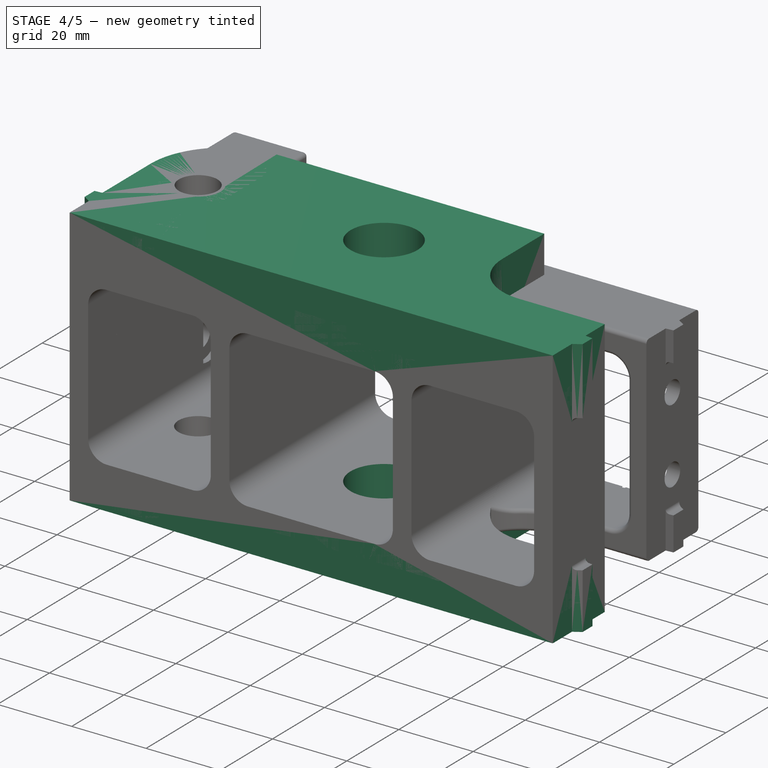
[diagram: stage 4 of 5 — iso view after this stage's code; geometry added in this stage tinted green]
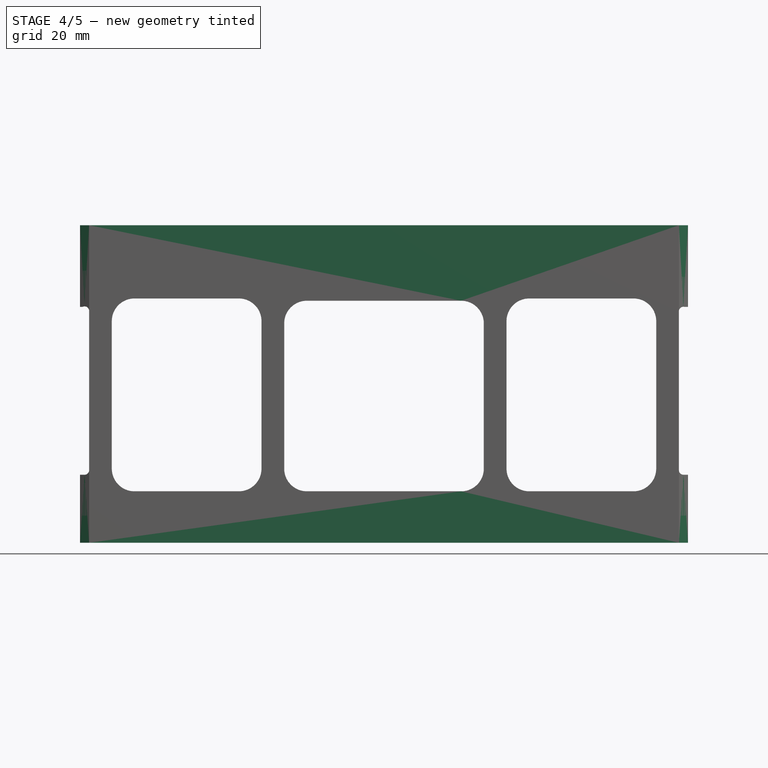
[diagram: stage 4 of 5 — front view after this stage's code; geometry added in this stage tinted green]
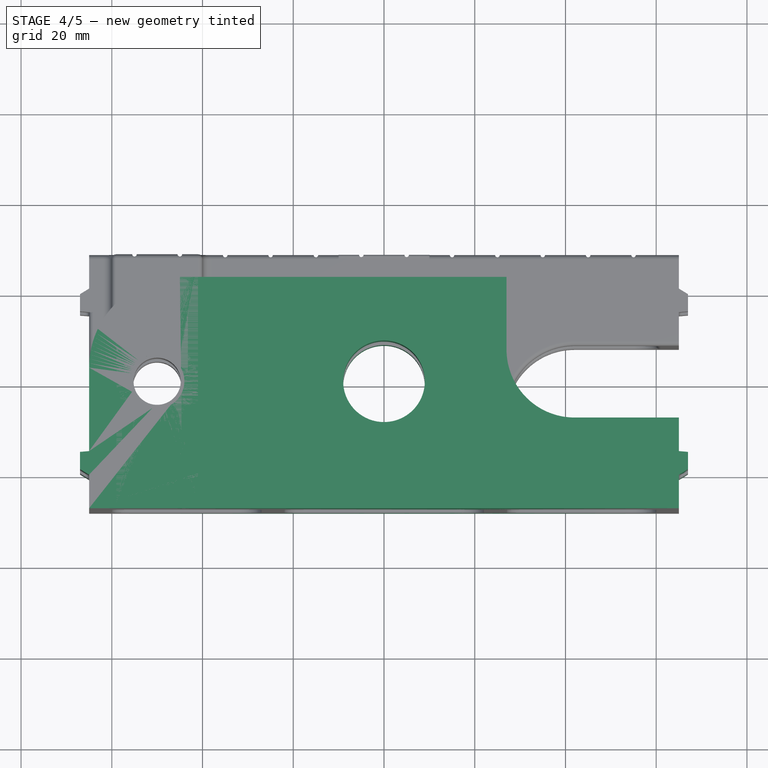
[diagram: stage 4 of 5 — top view after this stage's code; geometry added in this stage tinted green]
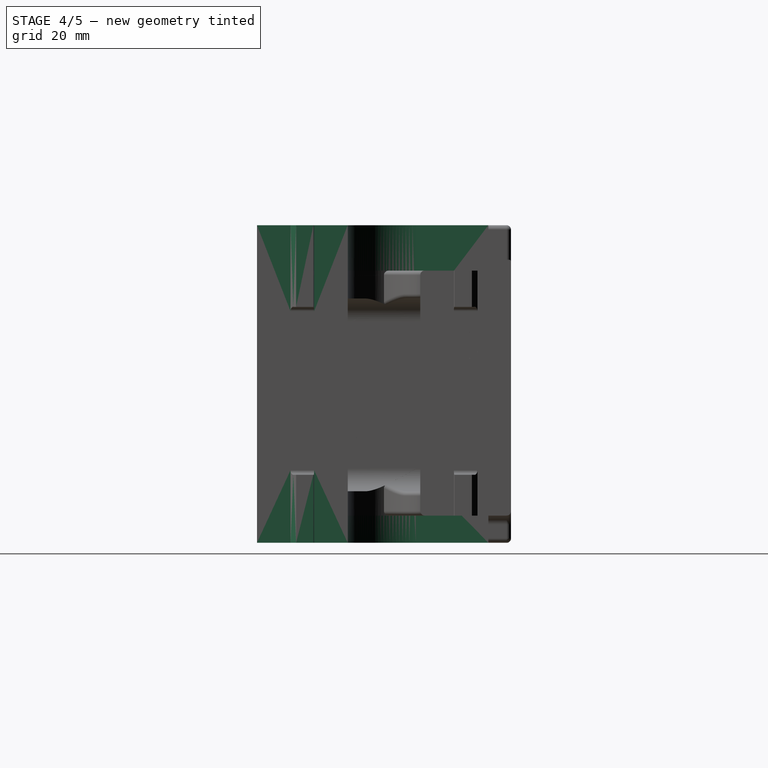
[diagram: stage 4 of 5 — right view after this stage's code; geometry added in this stage tinted green]
FEATURE [Sketcher::SketchObject] Sketch
  sketch-geometry (19):
    g0: LineSegment StartX=-45 StartY=23 StartZ=0 EndX=27 EndY=23 EndZ=0
    g1: LineSegment StartX=65 StartY=-28 StartZ=0 EndX=-65 EndY=-28 EndZ=0
    g2: LineSegment StartX=-65 StartY=-28 StartZ=0 EndX=-65 EndY=-20.6 EndZ=0
    g3: Circle CenterX=0 CenterY=0 CenterZ=0 NormalX=0 NormalY=0 NormalZ=1 Radius=9
    g4: Circle CenterX=-50 CenterY=0 CenterZ=0 NormalX=0 NormalY=0 NormalZ=1 Radius=6
    g5: LineSegment StartX=-65 StartY=-15.4 StartZ=0 EndX=-67 EndY=-15.575 EndZ=0
    g6: LineSegment StartX=-67 StartY=-15.575 StartZ=0 EndX=-67 EndY=-19.375 EndZ=0
    g7: LineSegment StartX=-67 StartY=-19.375 StartZ=0 EndX=-65 EndY=-20.6 EndZ=0
    g8: LineSegment StartX=-65 StartY=-15.4 StartZ=0 EndX=-65 EndY=3 EndZ=0
    g9: LineSegment [constr] StartX=-95 StartY=-18 StartZ=0 EndX=75 EndY=-18 EndZ=0
    g10: LineSegment StartX=65 StartY=-15.4 StartZ=0 EndX=67 EndY=-15.575 EndZ=0
    g11: LineSegment StartX=67 StartY=-15.575 StartZ=0 EndX=67 EndY=-19.375 EndZ=0
    g12: LineSegment StartX=67 StartY=-19.375 StartZ=0 EndX=65 EndY=-20.6 EndZ=0
    g13: LineSegment StartX=65 StartY=-28 StartZ=0 EndX=65 EndY=-20.6 EndZ=0
    g14: LineSegment StartX=65 StartY=-8 StartZ=0 EndX=65 EndY=-15.4 EndZ=0
    g15: LineSegment StartX=65 StartY=-8 StartZ=0 EndX=42 EndY=-8 EndZ=0
    g16: LineSegment StartX=27 StartY=23 StartZ=0 EndX=27 EndY=7 EndZ=0
    g17: ArcOfCircle CenterX=42 CenterY=7 CenterZ=0 NormalX=0 NormalY=0 NormalZ=1 Radius=15 StartAngle=3.14159 EndAngle=4.71239
    g18: ArcOfCircle CenterX=-45 CenterY=3 CenterZ=0 NormalX=0 NormalY=0 NormalZ=1 Radius=20 StartAngle=1.5708 EndAngle=3.14159
  constraints (54):
    c: Coincident(g1,g2)
    c: Horizontal(g0)
    c: Horizontal(g1)
    c: Vertical(g2)
    c: Coincident(g3,g-1)
    c: Radius(g3) = 9
    c: PointOnObject(g4,g-1)
    c: Radius(g4) = 6
    c: DistanceX(g-1,g4) = -50
    c: Angle(g5,g2) = 1.48353
    c: Coincident(g6,g5)
    c: Vertical(g6)
    c: Coincident(g6,g7)
    c: Coincident(g2,g7)
    c: Coincident(g8,g5)
    c: Tangent(g2,g8)
    c: DistanceX(g5,g5) = -2
    c: Horizontal(g9)
    c: DistanceY(g1,g9) = 10
    c: DistanceX(g-1,g9) = -95
    c: Distance(g9) = 170
    c: Coincident(g10,g11)
    c: Coincident(g11,g12)
    c: Vertical(g14)
    c: Vertical(g13)
    c: DistanceX(g-1,g1) = 65
    c: DistanceY(g9,g10) = 2.6
    c: Vertical(g11)
    c: DistanceX(g1,g11) = 2
    c: Coincident(g10,g14)
    c: Angle(g10,g14) = 1.65806
    c: Coincident(g1,g13)
    c: Coincident(g12,g13)
    c: DistanceY(g10,g12) = -5.2
    c: DistanceY(g-1,g1) = -28
    c: Distance(g10,g11) = 3.8
    c: Distance(g1,g15) = 20
    c: Horizontal(g15)
    c: Vertical(g16)
    c: Coincident(g0,g16)
    c: Coincident(g14,g15)
    c: DistanceX(g-1,g0) = 27
    c: DistanceY(g-1,g0) = 23
    c: PointOnObject(g10,g13)
    c: Tangent(g16,g17) = -1.5708
    c: Tangent(g15,g17) = 1.5708
    c: Radius(g17) = 15
    c: Tangent(g0,g18) = 1.5708
    c: Tangent(g8,g18) = 1.5708
    c: Radius(g18) = 20
    c: DistanceX(g-1,g8) = -65
    c: DistanceY(g9,g5) = 2.6
    c: DistanceY(g5,g2) = -5.2
    c: DistanceY(g5,g6) = -3.8
FEATURE [PartDesign::Pad] Pad
  Length = 70
  Length2 = 100
  Sketch = -> Sketch
  Type = 0
FEATURE [Sketcher::SketchObject] Sketch001
  ExternalGeometry = -> [Pad]
  Placement = pos=(0,-28,0) rot=(1,0,0;1.5708rad)
  Support = -> Pad [Face10]
  sketch-geometry (36):
    g0: LineSegment StartX=-17 StartY=53.35 StartZ=0 EndX=17 EndY=53.35 EndZ=0
    g1: LineSegment StartX=22 StartY=48.35 StartZ=0 EndX=22 EndY=16.35 EndZ=0
    g2: LineSegment StartX=17 StartY=11.35 StartZ=0 EndX=-17 EndY=11.35 EndZ=0
    g3: LineSegment StartX=-22 StartY=16.35 StartZ=0 EndX=-22 EndY=48.35 EndZ=0
    g4: LineSegment StartX=-55 StartY=53.85 StartZ=0 EndX=-32 EndY=53.85 EndZ=0
    g5: LineSegment StartX=-27 StartY=48.85 StartZ=0 EndX=-27 EndY=16.35 EndZ=0
    g6: LineSegment StartX=-32 StartY=11.35 StartZ=0 EndX=-55 EndY=11.35 EndZ=0
    g7: LineSegment StartX=-60 StartY=16.35 StartZ=0 EndX=-60 EndY=48.85 EndZ=0
    g8: LineSegment StartX=32 StartY=53.85 StartZ=0 EndX=55 EndY=53.85 EndZ=0
    g9: LineSegment StartX=60 StartY=48.85 StartZ=0 EndX=60 EndY=16.35 EndZ=0
    g10: LineSegment StartX=55 StartY=11.35 StartZ=0 EndX=32 EndY=11.35 EndZ=0
    g11: LineSegment StartX=27 StartY=16.35 StartZ=0 EndX=27 EndY=48.85 EndZ=0
    g12: LineSegment StartX=66.2175 StartY=52 StartZ=0 EndX=85 EndY=52 EndZ=0
    g13: LineSegment StartX=85 StartY=52 StartZ=0 EndX=85 EndY=15 EndZ=0
    g14: LineSegment StartX=85 StartY=15 StartZ=0 EndX=66 EndY=15 EndZ=0
    g15: LineSegment StartX=65 StartY=16 StartZ=0 EndX=65 EndY=51.0122 EndZ=0
    g16: LineSegment StartX=-85 StartY=52 StartZ=0 EndX=-66.434 EndY=52 EndZ=0
    g17: LineSegment StartX=-65 StartY=50.9699 StartZ=0 EndX=-65 EndY=16 EndZ=0
    g18: LineSegment StartX=-66 StartY=15 StartZ=0 EndX=-85 EndY=15 EndZ=0
    g19: LineSegment StartX=-85 StartY=15 StartZ=0 EndX=-85 EndY=52 EndZ=0
    g20: ArcOfCircle CenterX=-65.991 CenterY=51.1035 CenterZ=0 NormalX=0 NormalY=0 NormalZ=1 Radius=1 StartAngle=6.14926 EndAngle=8.31288
    g21: ArcOfCircle CenterX=-66 CenterY=16 CenterZ=0 NormalX=0 NormalY=0 NormalZ=1 Radius=1 StartAngle=4.71239 EndAngle=6.28319
    g22: ArcOfCircle CenterX=66 CenterY=16 CenterZ=0 NormalX=0 NormalY=0 NormalZ=1 Radius=1 StartAngle=3.14159 EndAngle=4.71239
    g23: ArcOfCircle CenterX=65.9999 CenterY=51.024 CenterZ=0 NormalX=0 NormalY=0 NormalZ=1 Radius=1 StartAngle=1.35147 EndAngle=3.15339
    g24: ArcOfCircle CenterX=-17 CenterY=16.35 CenterZ=0 NormalX=0 NormalY=0 NormalZ=1 Radius=5 StartAngle=3.14159 EndAngle=4.71239
    g25: ArcOfCircle CenterX=17 CenterY=16.35 CenterZ=0 NormalX=0 NormalY=0 NormalZ=1 Radius=5 StartAngle=4.71239 EndAngle=6.28319
    g26: ArcOfCircle CenterX=17 CenterY=48.35 CenterZ=0 NormalX=0 NormalY=0 NormalZ=1 Radius=5 StartAngle=0 EndAngle=1.5708
    g27: ArcOfCircle CenterX=-17 CenterY=48.35 CenterZ=0 NormalX=0 NormalY=0 NormalZ=1 Radius=5 StartAngle=1.5708 EndAngle=3.14159
    g28: ArcOfCircle CenterX=32 CenterY=16.35 CenterZ=0 NormalX=0 NormalY=0 NormalZ=1 Radius=5 StartAngle=3.14159 EndAngle=4.71239
    g29: ArcOfCircle CenterX=32 CenterY=48.85 CenterZ=0 NormalX=0 NormalY=0 NormalZ=1 Radius=5 StartAngle=1.5708 EndAngle=3.14159
    g30: ArcOfCircle CenterX=55 CenterY=48.85 CenterZ=0 NormalX=0 NormalY=0 NormalZ=1 Radius=5 StartAngle=0 EndAngle=1.5708
    g31: ArcOfCircle CenterX=55 CenterY=16.35 CenterZ=0 NormalX=0 NormalY=0 NormalZ=1 Radius=5 StartAngle=4.71239 EndAngle=6.28319
    g32: ArcOfCircle CenterX=-32 CenterY=48.85 CenterZ=0 NormalX=0 NormalY=0 NormalZ=1 Radius=5 StartAngle=0 EndAngle=1.5708
    g33: ArcOfCircle CenterX=-55 CenterY=48.85 CenterZ=0 NormalX=0 NormalY=0 NormalZ=1 Radius=5 StartAngle=1.5708 EndAngle=3.14159
    g34: ArcOfCircle CenterX=-55 CenterY=16.35 CenterZ=0 NormalX=0 NormalY=0 NormalZ=1 Radius=5 StartAngle=3.14159 EndAngle=4.71239
    g35: ArcOfCircle CenterX=-32 CenterY=16.35 CenterZ=0 NormalX=0 NormalY=0 NormalZ=1 Radius=5 StartAngle=4.71239 EndAngle=6.28319
  constraints (92):
    c: Coincident(g13,g12)
    c: Coincident(g23,g12)
    c: Coincident(g14,g13)
    c: Coincident(g14,g22)
    c: Coincident(g22,g15)
    c: Coincident(g23,g15)
    c: Coincident(g19,g16)
    c: Coincident(g20,g16)
    c: Coincident(g20,g17)
    c: Coincident(g21,g17)
    c: Coincident(g19,g18)
    c: Coincident(g21,g18)
    c: Distance(g-1,g2) = 11.35
    c: Distance(g-1,g1) = 22
    c: Horizontal(g4)
    c: Horizontal(g6)
    c: Horizontal(g2)
    c: Horizontal(g0)
    c: Horizontal(g8)
    c: Horizontal(g10)
    c: Vertical(g7)
    c: Vertical(g5)
    c: Vertical(g3)
    c: Vertical(g1)
    c: Vertical(g11)
    c: Vertical(g9)
    c: Tangent(g3,g24) = 1.5708
    c: Tangent(g2,g24) = 1.5708
    c: Tangent(g2,g25) = 1.5708
    c: Tangent(g1,g25) = 1.5708
    c: Tangent(g0,g26) = 1.5708
    c: Tangent(g1,g26) = 1.5708
    c: Tangent(g0,g27) = 1.5708
    c: Tangent(g3,g27) = 1.5708
    c: Radius(g27) = 5
    c: Equal(g27,g26)
    c: Equal(g26,g25)
    c: Equal(g25,g24)
    c: DistanceX(g1,g3) = -44
    c: Distance(g1,g11) = 5
    c: Tangent(g11,g28) = 1.5708
    c: Tangent(g10,g28) = 1.5708
    c: Tangent(g11,g29) = 1.5708
    c: Tangent(g8,g29) = 1.5708
    c: Tangent(g8,g30) = 1.5708
    c: Tangent(g9,g30) = 1.5708
    c: Tangent(g9,g31) = 1.5708
    c: Tangent(g10,g31) = 1.5708
    c: Equal(g27,g29)
    c: Equal(g29,g30)
    c: Equal(g30,g31)
    c: Equal(g31,g28)
    c: DistanceX(g11,g9) = 33
    c: DistanceY(g-1,g10) = 11.35
    c: DistanceY(g0,g2) = -42
    c: DistanceY(g8,g10) = -42.5
    c: Tangent(g4,g32) = 1.5708
    c: Tangent(g5,g32) = 1.5708
    c: Tangent(g4,g33) = 1.5708
    c: Tangent(g7,g33) = 1.5708
    c: Tangent(g7,g34) = 1.5708
    c: Tangent(g6,g34) = 1.5708
    c: Tangent(g6,g35) = 1.5708
    c: Tangent(g5,g35) = 1.5708
    c: Equal(g27,g32)
    c: Equal(g32,g33)
    c: Equal(g33,g34)
    c: Equal(g34,g35)
    c: DistanceX(g3,g5) = -5
    c: DistanceX(g5,g7) = -33
    c: DistanceY(g-1,g6) = 11.35
    c: DistanceY(g6,g4) = 42.5
    c: DistanceY(g-1,g13) = 15
    c: DistanceY(g-1,g18) = 15
    c: DistanceX(g-1,g15) = 65
    c: DistanceX(g-1,g17) = -65
    c: Distance(g13) = 37
    c: Distance(g19) = 37
    c: Radius(g21) = 1
    c: DistanceX(g-1,g13) = 85
    c: DistanceX(g-1,g18) = -85
    c: Vertical(g15)
    c: Vertical(g17)
    c: Vertical(g19)
    c: Vertical(g13)
    c: Horizontal(g18)
    c: Horizontal(g16)
    c: Horizontal(g12)
    c: Horizontal(g14)
    c: Equal(g21,g20)
    c: Equal(g21,g22)
    c: Equal(g22,g23)
FEATURE [PartDesign::Pocket] Pocket
  Length = 5
  Midplane = true
  Sketch = -> Sketch001
  Type = 1
FEATURE [PartDesign::Fillet] Fillet003
  Base = -> Fillet002 [Edge85]
  Radius = 1
FEATURE [PartDesign::Fillet] Fillet004
  Base = -> Fillet003 [Edge153]
  Radius = 1
FEATURE [PartDesign::Fillet] Fillet005
  Base = -> Fillet004 [Edge12,Edge4,Edge5]
  Radius = 1
FEATURE [PartDesign::Fillet] Fillet006
  Base = -> Fillet005 [Edge24,Edge9,Edge17]
  Radius = 1
FEATURE [Sketcher::SketchObject] Sketch062
  Placement = pos=(0,0,60) rot=(0,0,1;0rad)
  Support = -> Fillet006 [Face64]
  sketch-geometry (12):
    g0: Circle CenterX=-45 CenterY=-28 CenterZ=0 NormalX=0 NormalY=0 NormalZ=1 Radius=0.5
    g1: Circle CenterX=-55 CenterY=-28 CenterZ=0 NormalX=0 NormalY=0 NormalZ=1 Radius=0.5
    g2: Circle CenterX=-35 CenterY=-28 CenterZ=0 NormalX=0 NormalY=0 NormalZ=1 Radius=0.5
    g3: Circle CenterX=-25 CenterY=-28 CenterZ=0 NormalX=0 NormalY=0 NormalZ=1 Radius=0.5
    g4: Circle CenterX=25 CenterY=-28 CenterZ=0 NormalX=0 NormalY=0 NormalZ=1 Radius=0.5
    g5: Circle CenterX=35 CenterY=-28 CenterZ=0 NormalX=0 NormalY=0 NormalZ=1 Radius=0.5
    g6: Circle CenterX=45 CenterY=-28 CenterZ=0 NormalX=0 NormalY=0 NormalZ=1 Radius=0.5
    g7: Circle CenterX=55 CenterY=-28 CenterZ=0 NormalX=0 NormalY=0 NormalZ=1 Radius=0.5
    g8: Circle CenterX=15 CenterY=-28 CenterZ=0 NormalX=0 NormalY=0 NormalZ=1 Radius=0.5
    g9: Circle CenterX=5 CenterY=-28 CenterZ=0 NormalX=0 NormalY=0 NormalZ=1 Radius=0.5
    g10: Circle CenterX=-5 CenterY=-28 CenterZ=0 NormalX=0 NormalY=0 NormalZ=1 Radius=0.5
    g11: Circle CenterX=-15 CenterY=-28 CenterZ=0 NormalX=0 NormalY=0 NormalZ=1 Radius=0.5
  constraints (24):
    c: Radius(g0) = 0.5
    c: DistanceX(g-1,g0) = -45
    c: DistanceX(g0,g1) = -10
    c: Equal(g0,g1)
    c: Equal(g0,g2)
    c: DistanceX(g0,g2) = 10
    c: DistanceX(g2,g3) = 10
    c: Equal(g0,g3)
    c: DistanceX(g4,g5) = 10
    c: DistanceX(g3,g11) = 10
    c: DistanceX(g11,g10) = 10
    c: Equal(g3,g11)
    c: Equal(g11,g10)
    c: DistanceX(g10,g9) = 10
    c: DistanceX(g9,g8) = 10
    c: Equal(g10,g9)
    c: Equal(g9,g8)
    c: Equal(g8,g4)
    c: Equal(g4,g5)
    c: Equal(g5,g6)
    c: Equal(g6,g7)
    c: DistanceX(g8,g4) = 10
    c: DistanceX(g5,g6) = 10
    c: DistanceX(g7,g6) = -10
FEATURE [PartDesign::Pocket] Pocket010
  Length = 200
  Midplane = true
  Sketch = -> Sketch062
  Type = 0
FEATURE [Sketcher::SketchObject] Sketch058
  Placement = pos=(0,23,0) rot=(0,0.707107,0.707107;3.14159rad)
  Support = -> Pocket010 [Face57]
  sketch-geometry (4):
    g0: LineSegment StartX=-32.3231 StartY=47 StartZ=0 EndX=39.8959 EndY=47 EndZ=0
    g1: LineSegment StartX=39.8959 StartY=47 StartZ=0 EndX=39.8959 EndY=18 EndZ=0
    g2: LineSegment StartX=39.8959 StartY=18 StartZ=0 EndX=-32.3231 EndY=18 EndZ=0
    g3: LineSegment StartX=-32.3231 StartY=18 StartZ=0 EndX=-32.3231 EndY=47 EndZ=0
  constraints (10):
    c: Coincident(g0,g1)
    c: Coincident(g1,g2)
    c: Coincident(g2,g3)
    c: Coincident(g3,g0)
    c: Horizontal(g0)
    c: Horizontal(g2)
    c: Vertical(g1)
    c: Vertical(g3)
    c: DistanceY(g-1,g2) = 18
    c: Distance(g3) = 29
FEATURE [PartDesign::Pocket] Pocket011
  Length = 5
  Sketch = -> Sketch058
  Type = 0
FEATURE [PartDesign::Fillet] Fillet007
  Base = -> Pocket011 [Edge283,Edge314]
  Radius = 1
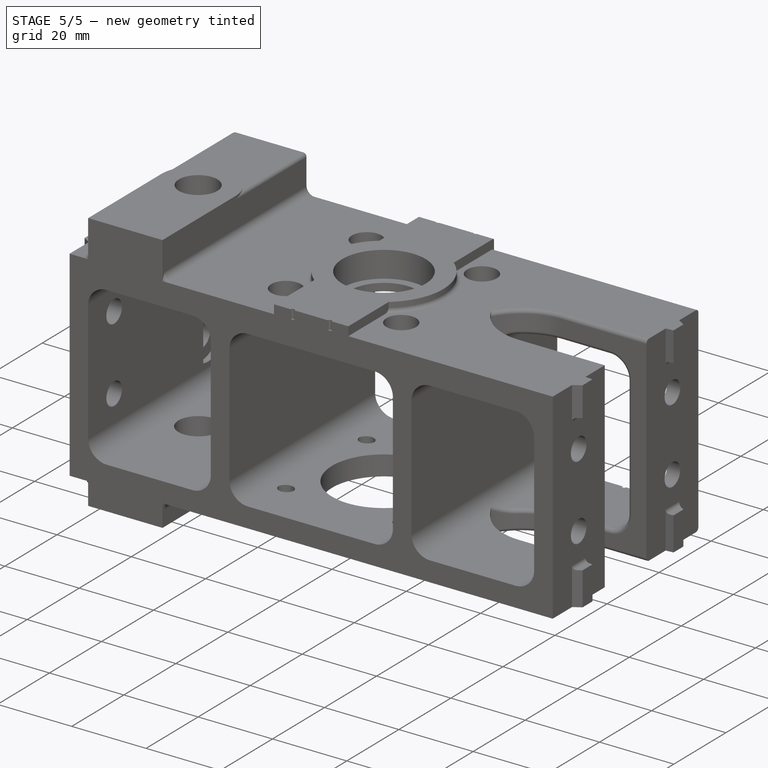
[diagram: stage 5 of 5 — iso view after this stage's code; geometry added in this stage tinted green]
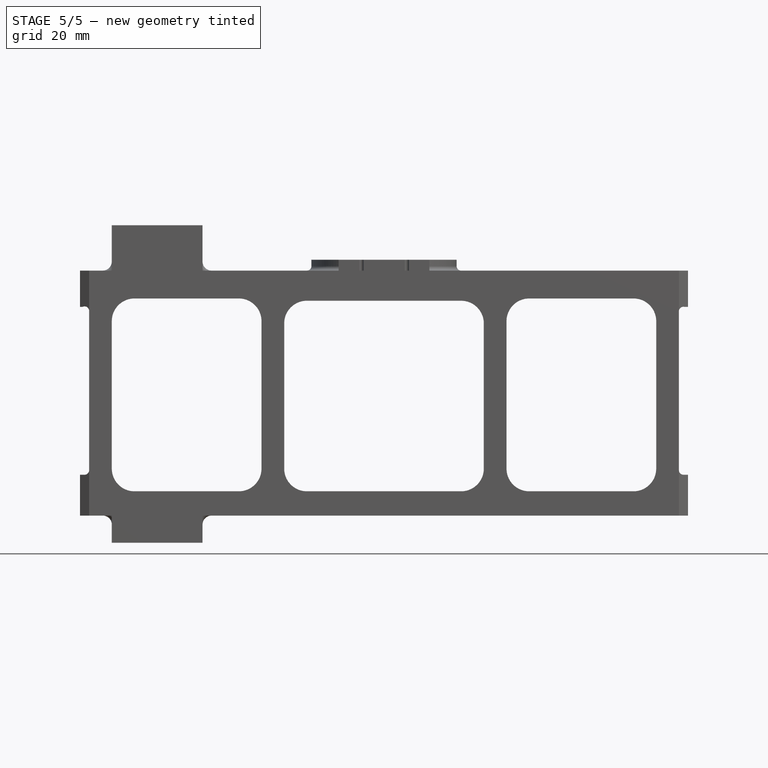
[diagram: stage 5 of 5 — front view after this stage's code; geometry added in this stage tinted green]
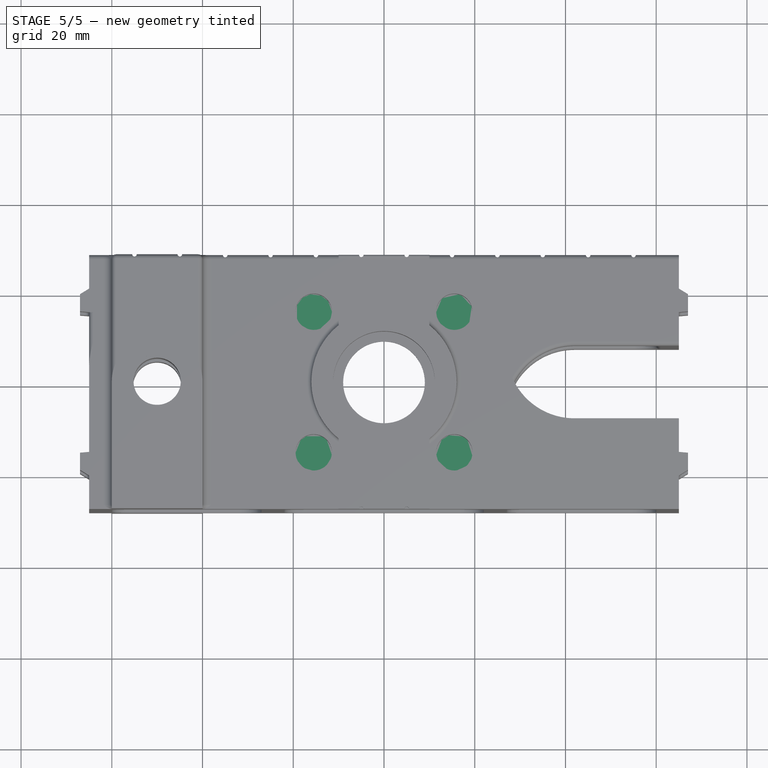
[diagram: stage 5 of 5 — top view after this stage's code; geometry added in this stage tinted green]
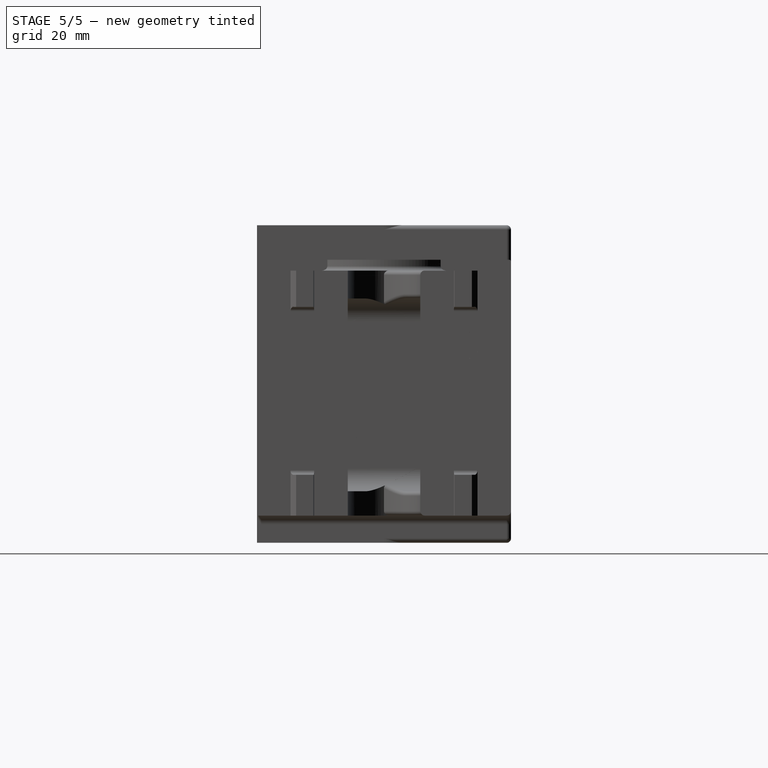
[diagram: stage 5 of 5 — right view after this stage's code; geometry added in this stage tinted green]
FEATURE [Sketcher::SketchObject] Sketch011
  Placement = pos=(0,0,70) rot=(0,0,1;0rad)
  Support = -> Pocket [Face3]
  sketch-geometry (13):
    g0: LineSegment StartX=-75 StartY=35 StartZ=0 EndX=75 EndY=35 EndZ=0
    g1: LineSegment StartX=75 StartY=35 StartZ=0 EndX=75 EndY=-35 EndZ=0
    g2: LineSegment StartX=75 StartY=-35 StartZ=0 EndX=-40 EndY=-35 EndZ=0
    g3: LineSegment StartX=-75 StartY=-35 StartZ=0 EndX=-75 EndY=35 EndZ=0
    g4: LineSegment [constr] StartX=-75 StartY=0 StartZ=0 EndX=75 EndY=0 EndZ=0
    g5: LineSegment [constr] StartX=0 StartY=35 StartZ=0 EndX=0 EndY=-35 EndZ=0
    g6: ArcOfCircle [constr] CenterX=-50 CenterY=0 CenterZ=0 NormalX=0 NormalY=0 NormalZ=1 Radius=10 StartAngle=3.14159 EndAngle=6.28319
    g7: ArcOfCircle [constr] CenterX=0 CenterY=0 CenterZ=0 NormalX=0 NormalY=0 NormalZ=1 Radius=16 StartAngle=0 EndAngle=3.14159
    g8: LineSegment StartX=-60 StartY=-2e-12 StartZ=0 EndX=-60 EndY=-35 EndZ=0
    g9: LineSegment StartX=-40 StartY=0 StartZ=0 EndX=-40 EndY=-35 EndZ=0
    g10: LineSegment StartX=-60 StartY=-35 StartZ=0 EndX=-75 EndY=-35 EndZ=0
    g11: Circle CenterX=0 CenterY=0 CenterZ=0 NormalX=0 NormalY=0 NormalZ=1 Radius=16
    g12: ArcOfCircle CenterX=-50 CenterY=0 CenterZ=0 NormalX=0 NormalY=0 NormalZ=1 Radius=10 StartAngle=0 EndAngle=3.14159
  constraints (42):
    c: Coincident(g1,g0)
    c: Coincident(g0,g3)
    c: Coincident(g2,g1)
    c: Coincident(g10,g3)
    c: Vertical(g5)
    c: Horizontal(g4)
    c: PointOnObject(g-1,g4)
    c: PointOnObject(g-1,g5)
    c: Radius(g6) = 10
    c: PointOnObject(g6,g4)
    c: DistanceX(g-1,g6) = -50
    c: PointOnObject(g6,g4)
    c: PointOnObject(g6,g4)
    c: Radius(g7) = 16
    c: Coincident(g7,g-1)
    c: Vertical(g8)
    c: Vertical(g9)
    c: Horizontal(g2)
    c: Horizontal(g0)
    c: Vertical(g3)
    c: Vertical(g1)
    c: Coincident(g10,g8)
    c: Tangent(g2,g10)
    c: Distance(g-1,g2) = 35
    c: DistanceX(g-1,g1) = 75
    c: Distance(g0) = 150
    c: Distance(g1) = 70
    c: PointOnObject(g4,g1)
    c: PointOnObject(g4,g3)
    c: PointOnObject(g5,g0)
    c: PointOnObject(g7,g4)
    c: PointOnObject(g7,g4)
    c: Coincident(g7,g11)
    c: Radius(g11) = 16
    c: Coincident(g2,g9)
    c: Coincident(g6,g12)
    c: PointOnObject(g12,g4)
    c: PointOnObject(g12,g4)
    c: PointOnObject(g9,g4)
    c: Equal(g12,g6)
    c: DistanceX(g5,g2) = -40
    c: Coincident(g6,g8)
FEATURE [PartDesign::Pocket] Pocket001
  Length = 10
  Sketch = -> Sketch011
  Type = 0
FEATURE [Sketcher::SketchObject] Sketch055
  Placement = pos=(0,0,0) rot=(1,0,0;3.14159rad)
  Support = -> Pocket001 [Face2]
  sketch-geometry (8):
    g0: LineSegment StartX=-75 StartY=40 StartZ=0 EndX=-60 EndY=40 EndZ=0
    g1: LineSegment StartX=75 StartY=40 StartZ=0 EndX=75 EndY=-40 EndZ=0
    g2: LineSegment StartX=75 StartY=-40 StartZ=0 EndX=-75 EndY=-40 EndZ=0
    g3: LineSegment StartX=-75 StartY=-40 StartZ=0 EndX=-75 EndY=40 EndZ=0
    g4: ArcOfCircle CenterX=-50 CenterY=0 CenterZ=0 NormalX=0 NormalY=0 NormalZ=1 Radius=10 StartAngle=3.14159 EndAngle=6.28319
    g5: LineSegment StartX=-40 StartY=40 StartZ=0 EndX=-40 EndY=4e-12 EndZ=0
    g6: LineSegment StartX=-60 StartY=40 StartZ=0 EndX=-60 EndY=-2e-12 EndZ=0
    g7: LineSegment StartX=-40 StartY=40 StartZ=0 EndX=75 EndY=40 EndZ=0
  constraints (24):
    c: Coincident(g7,g1)
    c: Coincident(g1,g2)
    c: Coincident(g3,g0)
    c: Horizontal(g0)
    c: Horizontal(g2)
    c: Vertical(g1)
    c: Vertical(g3)
    c: DistanceY(g-1,g1) = -40
    c: DistanceY(g1) = -80
    c: DistanceX(g-1,g7) = 75
    c: PointOnObject(g5,g-1)
    c: Radius(g4) = 10
    c: Coincident(g2,g3)
    c: Vertical(g6)
    c: Vertical(g5)
    c: DistanceX(g-1,g4) = -50
    c: PointOnObject(g4,g6)
    c: Tangent(g0,g7)
    c: Coincident(g6,g0)
    c: Coincident(g5,g7)
    c: DistanceX(g2) = -150
    c: PointOnObject(g4,g-1)
    c: Coincident(g4,g6)
    c: Coincident(g4,g5)
FEATURE [PartDesign::Pocket] Pocket002
  Length = 6
  Sketch = -> Sketch055
  Type = 0
FEATURE [Sketcher::SketchObject] Sketch029
  Placement = pos=(0,0,53.85) rot=(1,0,0;3.14159rad)
  Support = -> Pocket002 [Face6]
  sketch-geometry (8):
    g0: Circle CenterX=-15.5 CenterY=15.5 CenterZ=0 NormalX=0 NormalY=0 NormalZ=1 Radius=4
    g1: Circle CenterX=15.5 CenterY=15.5 CenterZ=0 NormalX=0 NormalY=0 NormalZ=1 Radius=4
    g2: Circle CenterX=-15.5 CenterY=-15.5 CenterZ=0 NormalX=0 NormalY=0 NormalZ=1 Radius=4
    g3: Circle CenterX=15.5 CenterY=-15.5 CenterZ=0 NormalX=0 NormalY=0 NormalZ=1 Radius=4
    g4: LineSegment [constr] StartX=-15.5 StartY=15.5 StartZ=0 EndX=15.5 EndY=15.5 EndZ=0
    g5: LineSegment [constr] StartX=15.5 StartY=15.5 StartZ=0 EndX=15.5 EndY=-15.5 EndZ=0
    g6: LineSegment [constr] StartX=15.5 StartY=-15.5 StartZ=0 EndX=-15.5 EndY=-15.5 EndZ=0
    g7: LineSegment [constr] StartX=-15.5 StartY=-15.5 StartZ=0 EndX=-15.5 EndY=15.5 EndZ=0
  constraints (20):
    c: Radius(g0) = 4
    c: Equal(g0,g1)
    c: Equal(g1,g2)
    c: Equal(g2,g3)
    c: Coincident(g4,g5)
    c: Coincident(g5,g6)
    c: Coincident(g6,g7)
    c: Coincident(g7,g4)
    c: Horizontal(g4)
    c: Horizontal(g6)
    c: Vertical(g5)
    c: Vertical(g7)
    c: DistanceY(g-1,g4) = 15.5
    c: Distance(g5) = 31
    c: DistanceX(g4) = 31
    c: DistanceX(g-1,g4) = 15.5
    c: Coincident(g0,g4)
    c: Coincident(g1,g4)
    c: Coincident(g3,g5)
    c: Coincident(g2,g6)
FEATURE [PartDesign::Pocket] Pocket003
  Length = 8
  Sketch = -> Sketch029
  Type = 0
FEATURE [Sketcher::SketchObject] Sketch033
  Placement = pos=(0,0,6) rot=(1,0,0;3.14159rad)
  Support = -> Pocket003 [Face2]
  sketch-geometry (11):
    g0: Circle CenterX=-15.5 CenterY=15.25 CenterZ=0 NormalX=0 NormalY=0 NormalZ=1 Radius=2.1
    g1: Circle CenterX=-15.5 CenterY=-15.75 CenterZ=0 NormalX=0 NormalY=0 NormalZ=1 Radius=2.1
    g2: Circle CenterX=15.5 CenterY=15.25 CenterZ=0 NormalX=0 NormalY=0 NormalZ=1 Radius=2.1
    g3: Circle CenterX=15.5 CenterY=-15.75 CenterZ=0 NormalX=0 NormalY=0 NormalZ=1 Radius=2.1
    g4: Circle CenterX=0 CenterY=0 CenterZ=0 NormalX=0 NormalY=0 NormalZ=1 Radius=14
    g5: LineSegment [constr] StartX=0 StartY=35 StartZ=0 EndX=0 EndY=-35 EndZ=0
    g6: LineSegment [constr] StartX=-35 StartY=0 StartZ=0 EndX=35 EndY=0 EndZ=0
    g7: LineSegment [constr] StartX=-15.5 StartY=15.25 StartZ=0 EndX=15.5 EndY=15.25 EndZ=0
    g8: LineSegment [constr] StartX=15.5 StartY=15.25 StartZ=0 EndX=15.5 EndY=-15.75 EndZ=0
    g9: LineSegment [constr] StartX=15.5 StartY=-15.75 StartZ=0 EndX=-15.5 EndY=-15.75 EndZ=0
    g10: LineSegment [constr] StartX=-15.5 StartY=-15.75 StartZ=0 EndX=-15.5 EndY=15.25 EndZ=0
  constraints (30):
    c: Radius(g3) = 2.1
    c: Equal(g3,g2)
    c: Equal(g2,g1)
    c: Equal(g1,g0)
    c: Radius(g4) = 14
    c: Horizontal(g6)
    c: Vertical(g5)
    c: PointOnObject(g-1,g5)
    c: PointOnObject(g-1,g6)
    c: Coincident(g4,g-1)
    c: Coincident(g7,g8)
    c: Coincident(g8,g9)
    c: Coincident(g9,g10)
    c: Coincident(g10,g7)
    c: Horizontal(g7)
    c: Horizontal(g9)
    c: Vertical(g8)
    c: Vertical(g10)
    c: DistanceX(g-1,g8) = 15.5
    c: Distance(g9) = 31
    c: DistanceY(g-1,g8) = -15.75
    c: Distance(g8) = 31
    c: Coincident(g1,g9)
    c: Coincident(g3,g8)
    c: Coincident(g2,g8)
    c: Coincident(g0,g7)
    c: Distance(g6) = 70
    c: DistanceX(g-1,g6) = -35
    c: Distance(g5) = 70
    c: DistanceY(g-1,g5) = -35
FEATURE [PartDesign::Pocket] Pocket004
  Length = 10
  Sketch = -> Sketch033
  Type = 0
FEATURE [Sketcher::SketchObject] Sketch040
  Placement = pos=(0,0,70) rot=(0,0,1;0rad)
  Support = -> Pocket004 [Face82]
  sketch-geometry (1):
    g0: Circle CenterX=0 CenterY=0 CenterZ=0 NormalX=0 NormalY=0 NormalZ=1 Radius=11.2
  constraints (2):
    c: Radius(g0) = 11.2
    c: Coincident(g0,g-1)
FEATURE [PartDesign::Pocket] Pocket005
  Length = 14.6
  Sketch = -> Sketch040
  Type = 0
FEATURE [Sketcher::SketchObject] Sketch056
  Placement = pos=(0,0,70) rot=(0,0,1;0rad)
  Support = -> Pocket005 [Face82]
  sketch-geometry (1):
    g0: Circle CenterX=0 CenterY=0 CenterZ=0 NormalX=0 NormalY=0 NormalZ=1 Radius=20
  constraints (2):
    c: Coincident(g0,g-1)
    c: Radius(g0) = 20
FEATURE [PartDesign::Pocket] Pocket006
  Length = 7.6
  Sketch = -> Sketch056
  Type = 0
FEATURE [Sketcher::SketchObject] Sketch043
  Placement = pos=(-65,0,0) rot=(0.57735,-0.57735,-0.57735;2.0944rad)
  Support = -> Pocket006 [Face27]
  sketch-geometry (3):
    g0: LineSegment [constr] StartX=18 StartY=43.5 StartZ=0 EndX=18 EndY=23.5 EndZ=0
    g1: Circle CenterX=18 CenterY=43.5 CenterZ=0 NormalX=0 NormalY=0 NormalZ=1 Radius=3
    g2: Circle CenterX=18 CenterY=23.5 CenterZ=0 NormalX=0 NormalY=0 NormalZ=1 Radius=3
  constraints (7):
    c: Vertical(g0)
    c: DistanceY(g-1,g0) = 23.5
    c: DistanceY(g0,g0) = 20
    c: Coincident(g2,g0)
    c: Coincident(g1,g0)
    c: Radius(g2) = 3
    c: Equal(g2,g1)
FEATURE [PartDesign::Pocket] Pocket007
  Length = 8
  Sketch = -> Sketch043
  Type = 0
FEATURE [Sketcher::SketchObject] Sketch053
  Placement = pos=(65,0,0) rot=(0.57735,0.57735,0.57735;2.0944rad)
  Support = -> Pocket007 [Face21]
  sketch-geometry (3):
    g0: Circle CenterX=-18 CenterY=43.5 CenterZ=0 NormalX=0 NormalY=0 NormalZ=1 Radius=3
    g1: Circle CenterX=-18 CenterY=23.5 CenterZ=0 NormalX=0 NormalY=0 NormalZ=1 Radius=3
    g2: LineSegment [constr] StartX=-18 StartY=43.5 StartZ=0 EndX=-18 EndY=23.5 EndZ=0
  constraints (7):
    c: Vertical(g2)
    c: Coincident(g2,g1)
    c: Coincident(g2,g0)
    c: DistanceY(g-1,g1) = 23.5
    c: DistanceY(g2) = -20
    c: Radius(g1) = 3
    c: Equal(g1,g0)
FEATURE [PartDesign::Pocket] Pocket008
  Length = 8
  Sketch = -> Sketch053
  Type = 0
FEATURE [Sketcher::SketchObject] Sketch057
  Placement = pos=(-60,0,0) rot=(0.57735,-0.57735,-0.57735;2.0944rad)
  Support = -> Pocket008 [Face41]
  sketch-geometry (1):
    g0: Circle CenterX=0 CenterY=65 CenterZ=0 NormalX=0 NormalY=0 NormalZ=1 Radius=2.1
  constraints (3):
    c: Radius(g0) = 2.1
    c: DistanceX(g-1,g0) = 0
    c: DistanceY(g-1,g0) = 65
FEATURE [PartDesign::Pocket] Pocket009
  Length = 8
  Sketch = -> Sketch057
  Type = 0
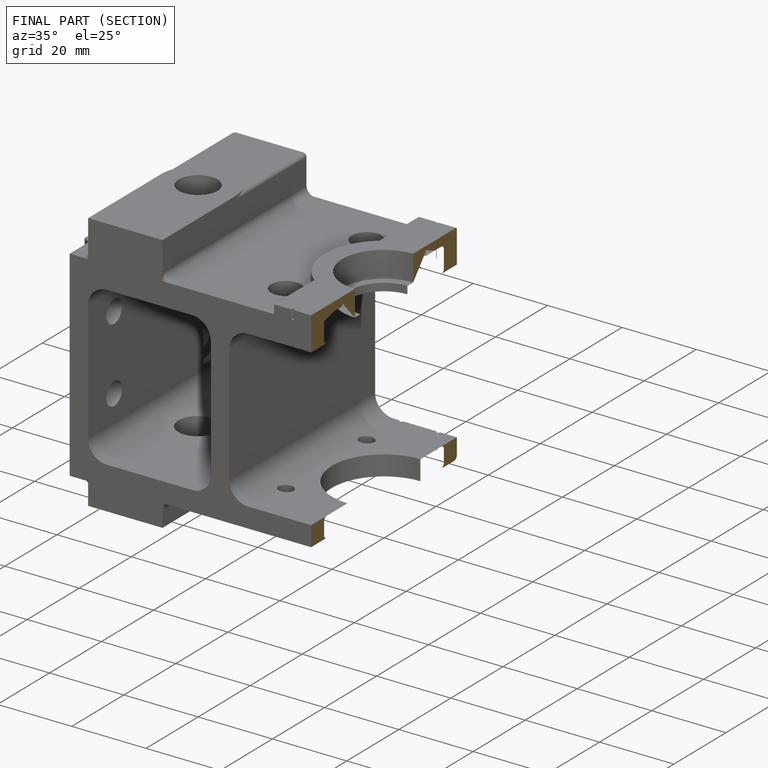
[diagram: finished part — half-section view (interior)]
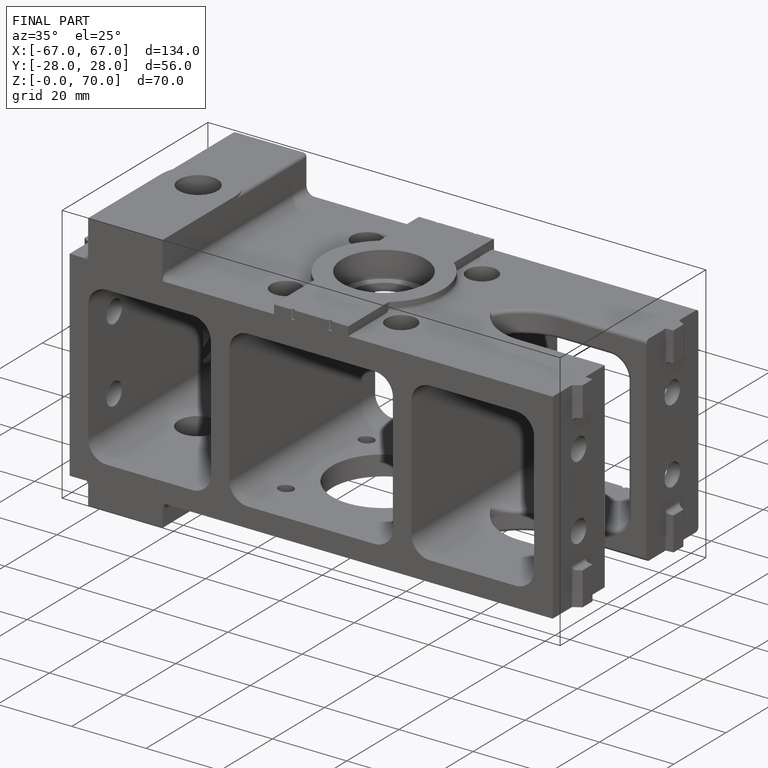
[diagram: finished part — iso view with bounding-box wireframe]
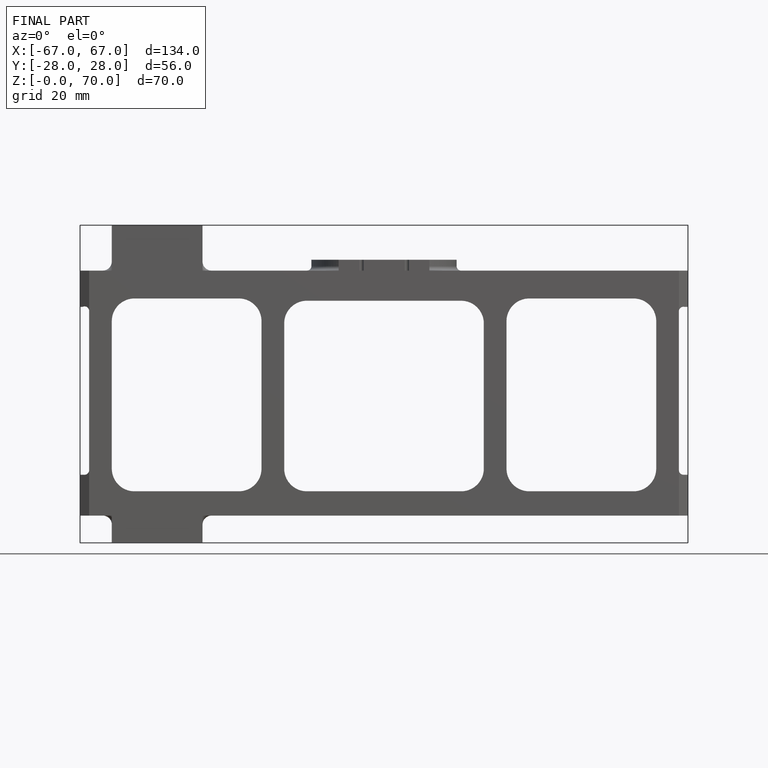
[diagram: finished part — front view with bounding-box wireframe]
